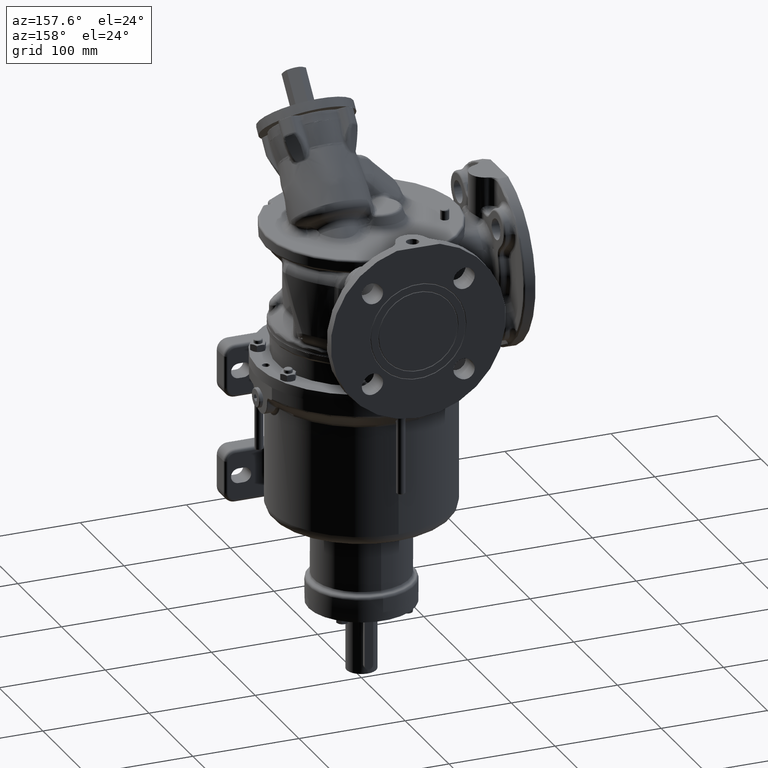
[diagram: clean part render]
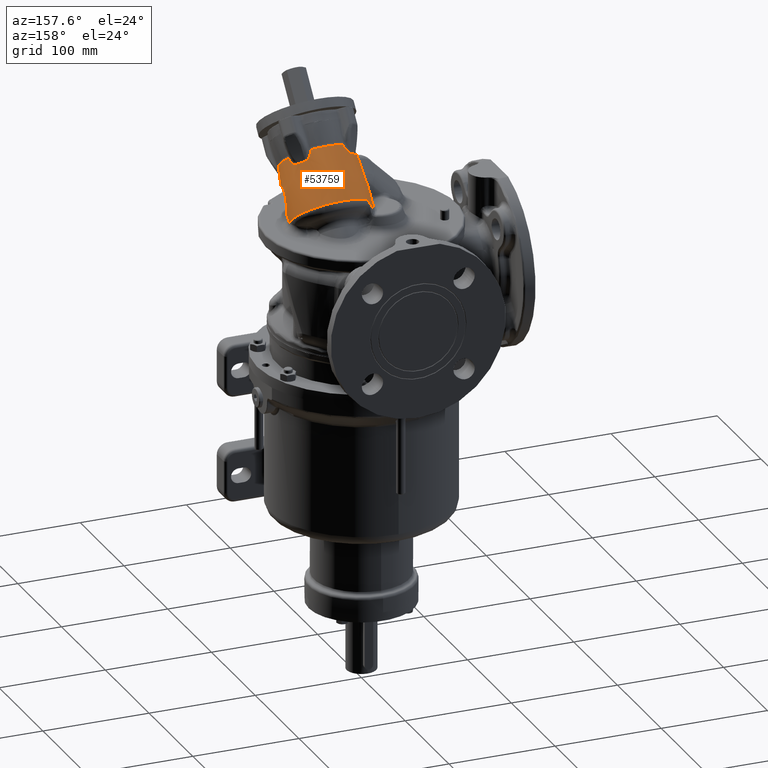
[diagram: same view with one face highlighted and labeled with its STEP entity id]
A machine part, auxiliary view. The second image highlights one B-rep face of the part: STEP entity #53759.
In plain terms, the highlighted face is a freeform B-spline surface patch.
Its self-contained STEP definition (entity closure, byte-faithful):
#5543=CARTESIAN_POINT('',(6.436123044226E1,-1.279247660228E1,1.414942116374E2));
#5956=CARTESIAN_POINT('',(-1.430507384947E0,2.500341761834E1,1.515457124241E2));
#5957=CARTESIAN_POINT('',(-1.616240001855E0,2.461004323683E1,1.515594611873E2));
#5958=CARTESIAN_POINT('',(-1.980322993446E0,2.381378270042E1,1.515872635688E2));
#5959=CARTESIAN_POINT('',(-2.503507672943E0,2.259099522810E1,1.516298904406E2));
#5960=CARTESIAN_POINT('',(-3.002496859808E0,2.134102539255E1,1.516733973736E2));
#5961=CARTESIAN_POINT('',(-3.476212365173E0,2.006488685634E1,1.517177479352E2));
#5962=CARTESIAN_POINT('',(-3.923589479497E0,1.876371074181E1,1.517629007615E2));
#5963=CARTESIAN_POINT('',(-4.343631942686E0,1.743861034594E1,1.518088262411E2));
#5964=CARTESIAN_POINT('',(-4.735365979979E0,1.609081411482E1,1.518554849647E2));
#5965=CARTESIAN_POINT('',(-5.097812900257E0,1.472181530795E1,1.519028277712E2));
#5966=CARTESIAN_POINT('',(-5.430074142924E0,1.333312602029E1,1.519508008598E2));
#5967=CARTESIAN_POINT('',(-5.731329119799E0,1.192622817261E1,1.519993691754E2));
#5968=CARTESIAN_POINT('',(-6.000785709954E0,1.050283847287E1,1.520484841777E2));
#5969=CARTESIAN_POINT('',(-6.237734812751E0,9.064713230071E0,1.520980919755E2));
#5970=CARTESIAN_POINT('',(-6.441550147986E0,7.613627769682E0,1.521481361454E2));
#5971=CARTESIAN_POINT('',(-6.611674167327E0,6.151482383412E0,1.521985540940E2));
#5972=CARTESIAN_POINT('',(-6.747653226122E0,4.680106345831E0,1.522492981782E2));
#5973=CARTESIAN_POINT('',(-6.815246681029E0,3.694634694561E0,1.522832859291E2));
#5974=CARTESIAN_POINT('',(-6.843261921554E0,3.200819154326E0,1.523003247988E2));
#5976=CARTESIAN_POINT('',(5.676362037364E0,2.571024753623E1,1.641156532342E2));
#5977=CARTESIAN_POINT('',(5.439296697320E0,2.565800592011E1,1.638527452815E2));
#5978=CARTESIAN_POINT('',(4.989831998513E0,2.555541404138E1,1.633414482981E2));
#5979=CARTESIAN_POINT('',(4.392810773324E0,2.541565525252E1,1.626254855609E2));
#5980=CARTESIAN_POINT('',(3.854098903746E0,2.528995811792E1,1.619438144553E2));
#5981=CARTESIAN_POINT('',(3.362244632372E0,2.517807021868E1,1.612867502865E2));
#5982=CARTESIAN_POINT('',(2.905661831854E0,2.507871366060E1,1.606429343421E2));
#5983=CARTESIAN_POINT('',(2.476575733919E0,2.499121886526E1,1.600040558083E2));
#5984=CARTESIAN_POINT('',(2.071269506046E0,2.491546514998E1,1.593668067188E2));
#5985=CARTESIAN_POINT('',(1.686194763118E0,2.485147233922E1,1.587271961222E2));
#5986=CARTESIAN_POINT('',(1.319686838534E0,2.479935433223E1,1.580839897578E2));
#5987=CARTESIAN_POINT('',(9.698675451934E-1,2.475940147399E1,1.574349559670E2));
#5988=CARTESIAN_POINT('',(6.364896363342E-1,2.473203998569E1,1.567806625165E2));
#5989=CARTESIAN_POINT('',(3.195702102275E-1,2.471764608559E1,1.561223481672E2));
#5990=CARTESIAN_POINT('',(1.900944712638E-2,2.471659783852E1,1.554610520982E2));
#5991=CARTESIAN_POINT('',(-2.649187327425E-1,2.472922522410E1,
1.547987828033E2));
#5992=CARTESIAN_POINT('',(-5.320705356028E-1,2.475572932527E1,
1.541375682304E2));
#5993=CARTESIAN_POINT('',(-7.824310346300E-1,2.479617897517E1,
1.534794058711E2));
#5994=CARTESIAN_POINT('',(-1.015983426979E0,2.485063490379E1,1.528264018508E2));
#5995=CARTESIAN_POINT('',(-1.232879677057E0,2.491905292313E1,1.521804309566E2));
#5996=CARTESIAN_POINT('',(-1.366363213623E0,2.497378595283E1,1.517562637289E2));
#5997=CARTESIAN_POINT('',(-1.430507384947E0,2.500341761834E1,1.515457124241E2));
#5999=CARTESIAN_POINT('',(3.047620154147E1,4.162493042489E0,1.460349372192E2));
#6000=DIRECTION('',(0.E0,6.427876096865E-1,-7.660444431190E-1));
#6001=DIRECTION('',(-6.613291425453E-1,5.746067480140E-1,4.821523103305E-1));
#6002=AXIS2_PLACEMENT_3D('',#5999,#6000,#6001);
#6004=CARTESIAN_POINT('',(6.436123044226E1,-1.279247660228E1,1.414942116374E2));
#6005=CARTESIAN_POINT('',(6.451480598735E1,-1.236614298789E1,1.414760272187E2));
#6006=CARTESIAN_POINT('',(6.481340590201E1,-1.150503612427E1,1.414390949227E2));
#6007=CARTESIAN_POINT('',(6.523492843169E1,-1.018827656029E1,1.413819708743E2));
#6008=CARTESIAN_POINT('',(6.562898127518E1,-8.847839888662E0,1.413231328444E2));
#6009=CARTESIAN_POINT('',(6.599463891300E1,-7.484870203931E0,1.412625844288E2));
#6010=CARTESIAN_POINT('',(6.633096462915E1,-6.100759835433E0,1.412003355614E2));
#6011=CARTESIAN_POINT('',(6.663708209790E1,-4.696985092298E0,1.411364067190E2));
#6012=CARTESIAN_POINT('',(6.691219326897E1,-3.274957659285E0,1.410708093700E2));
#6013=CARTESIAN_POINT('',(6.707439018787E1,-2.316068537081E0,1.410259959841E2));
#6014=CARTESIAN_POINT('',(6.715010608966E1,-1.833962975726E0,1.410033131860E2));
#6016=CARTESIAN_POINT('',(6.576805150562E1,-1.080088342895E1,1.445506128707E2));
#6017=CARTESIAN_POINT('',(6.568361934488E1,-1.093295676020E1,1.443262472849E2));
#6018=CARTESIAN_POINT('',(6.551035082589E1,-1.119830376809E1,1.438857184175E2));
#6019=CARTESIAN_POINT('',(6.523789690904E1,-1.159758573368E1,1.432468897192E2));
#6020=CARTESIAN_POINT('',(6.495450972079E1,-1.199796342676E1,1.426339960134E2));
#6021=CARTESIAN_POINT('',(6.466193535120E1,-1.239666512503E1,1.420471354656E2));
#6022=CARTESIAN_POINT('',(6.446214833695E1,-1.266102327348E1,1.416755958186E2));
#6023=CARTESIAN_POINT('',(6.436123044226E1,-1.279247660228E1,1.414942116374E2));
#6025=CARTESIAN_POINT('',(4.689860901694E1,-3.584555753178E1,1.423760501433E2));
#6026=CARTESIAN_POINT('',(4.690087379525E1,-3.592349553134E1,1.424835469094E2));
#6027=CARTESIAN_POINT('',(4.690973114052E1,-3.607749535107E1,1.426998628040E2));
#6028=CARTESIAN_POINT('',(4.693595318947E1,-3.630284149840E1,1.430282929692E2));
#6029=CARTESIAN_POINT('',(4.697514327703E1,-3.652251702284E1,1.433607697314E2));
#6030=CARTESIAN_POINT('',(4.702730434970E1,-3.673647969396E1,1.436973613908E2));
#6031=CARTESIAN_POINT('',(4.709248443744E1,-3.694464870442E1,1.440381563043E2));
#6032=CARTESIAN_POINT('',(4.717059622445E1,-3.714700056333E1,1.443832403708E2));
#6033=CARTESIAN_POINT('',(4.726207685013E1,-3.734320271655E1,1.447327655514E2));
#6034=CARTESIAN_POINT('',(4.736724055580E1,-3.753296546823E1,1.450868850109E2));
#6035=CARTESIAN_POINT('',(4.748610921028E1,-3.771611829333E1,1.454457066150E2));
#6036=CARTESIAN_POINT('',(4.761867288421E1,-3.789249721134E1,1.458093612682E2));
#6037=CARTESIAN_POINT('',(4.776499685472E1,-3.806193162974E1,1.461780867602E2));
#6038=CARTESIAN_POINT('',(4.792471982865E1,-3.822457076567E1,1.465522165725E2));
#6039=CARTESIAN_POINT('',(4.809910234613E1,-3.837922721922E1,1.469317793589E2));
#6040=CARTESIAN_POINT('',(4.828829567956E1,-3.852512173424E1,1.473164323811E2));
#6041=CARTESIAN_POINT('',(4.849194989537E1,-3.866183461703E1,1.477059093072E2));
#6042=CARTESIAN_POINT('',(4.870969202039E1,-3.878904927587E1,1.481000993051E2));
#6043=CARTESIAN_POINT('',(4.894156955617E1,-3.890655794392E1,1.484995168561E2));
#6044=CARTESIAN_POINT('',(4.918693820799E1,-3.901474483850E1,1.489048606155E2));
#6045=CARTESIAN_POINT('',(4.944817218210E1,-3.911107937948E1,1.493159051943E2));
#6046=CARTESIAN_POINT('',(4.972561286433E1,-3.919494136519E1,1.497332357027E2));
#6047=CARTESIAN_POINT('',(5.001940126264E1,-3.926601755614E1,1.501577811192E2));
#6048=CARTESIAN_POINT('',(5.032896588098E1,-3.932384480222E1,1.505895892758E2));
#6049=CARTESIAN_POINT('',(5.065204082673E1,-3.936769248904E1,1.510264104361E2));
#6050=CARTESIAN_POINT('',(5.098539495230E1,-3.939808862065E1,1.514664358245E2));
#6051=CARTESIAN_POINT('',(5.133157247083E1,-3.941066076119E1,1.519075631726E2));
#6052=CARTESIAN_POINT('',(5.169179036696E1,-3.940551507695E1,1.523529556979E2));
#6053=CARTESIAN_POINT('',(5.206789398091E1,-3.938210483821E1,1.528059956796E2));
#6054=CARTESIAN_POINT('',(5.245818276101E1,-3.934000819082E1,1.532659751887E2));
#6055=CARTESIAN_POINT('',(5.285661260775E1,-3.927984837153E1,1.537275547152E2));
#6056=CARTESIAN_POINT('',(5.325691128047E1,-3.920323505906E1,1.541854848173E2));
#6057=CARTESIAN_POINT('',(5.366167818311E1,-3.910589156279E1,1.546379681095E2));
#6058=CARTESIAN_POINT('',(5.407352734284E1,-3.898790020953E1,1.550903516329E2));
#6059=CARTESIAN_POINT('',(5.449590848188E1,-3.884747374123E1,1.555472627434E2));
#6060=CARTESIAN_POINT('',(5.492691209819E1,-3.868448175306E1,1.560079260877E2));
#6061=CARTESIAN_POINT('',(5.536213794724E1,-3.850027048180E1,1.564692292985E2));
#6062=CARTESIAN_POINT('',(5.579802120513E1,-3.829620908321E1,1.569287244139E2));
#6063=CARTESIAN_POINT('',(5.623169658615E1,-3.807226650317E1,1.573823686610E2));
#6064=CARTESIAN_POINT('',(5.666002328425E1,-3.782991125399E1,1.578272534619E2));
#6065=CARTESIAN_POINT('',(5.708034290356E1,-3.757080107448E1,1.582607635138E2));
#6066=CARTESIAN_POINT('',(5.749824531681E1,-3.729170174550E1,1.586892567484E2));
#6067=CARTESIAN_POINT('',(5.791993501272E1,-3.698690093577E1,1.591184895647E2));
#6068=CARTESIAN_POINT('',(5.834766973513E1,-3.665523033153E1,1.595550062862E2));
#6069=CARTESIAN_POINT('',(5.877100047521E1,-3.630320695249E1,1.599884376060E2));
#6070=CARTESIAN_POINT('',(5.918090710377E1,-3.593768116342E1,1.604084426984E2));
#6071=CARTESIAN_POINT('',(5.957336075576E1,-3.556319997670E1,1.608103407293E2));
#6072=CARTESIAN_POINT('',(5.995018661612E1,-3.517915482014E1,1.611954141594E2));
#6073=CARTESIAN_POINT('',(6.031179170865E1,-3.478617312255E1,1.615636244631E2));
#6074=CARTESIAN_POINT('',(6.066037404234E1,-3.438458390373E1,1.619198014346E2));
#6075=CARTESIAN_POINT('',(6.099889810556E1,-3.397140743076E1,1.622666332677E2));
#6076=CARTESIAN_POINT('',(6.133008150611E1,-3.354344480495E1,1.626070835802E2));
#6077=CARTESIAN_POINT('',(6.165451327119E1,-3.309954722897E1,1.629417873876E2));
#6078=CARTESIAN_POINT('',(6.197216495890E1,-3.263954677507E1,1.632712551372E2));
#6079=CARTESIAN_POINT('',(6.228309616269E1,-3.216212643768E1,1.635943918286E2));
#6080=CARTESIAN_POINT('',(6.258836180692E1,-3.166335683882E1,1.639095830472E2));
#6081=CARTESIAN_POINT('',(6.288873784690E1,-3.114143186190E1,1.642187937993E2));
#6082=CARTESIAN_POINT('',(6.318470125092E1,-3.059388948281E1,1.645228534560E2));
#6083=CARTESIAN_POINT('',(6.347060413610E1,-3.003019882892E1,1.648163906436E2));
#6084=CARTESIAN_POINT('',(6.374116484242E1,-2.946248963647E1,1.650956598855E2));
#6085=CARTESIAN_POINT('',(6.399342399101E1,-2.889839607776E1,1.653548511337E2));
#6086=CARTESIAN_POINT('',(6.423067651579E1,-2.833278525561E1,1.655956060278E2));
#6087=CARTESIAN_POINT('',(6.445510103917E1,-2.776233280221E1,1.658197547152E2));
#6088=CARTESIAN_POINT('',(6.466836054453E1,-2.718397873274E1,1.660283201452E2));
#6089=CARTESIAN_POINT('',(6.487101811381E1,-2.659714598346E1,1.662214229053E2));
#6090=CARTESIAN_POINT('',(6.506401164938E1,-2.599972026770E1,1.663992511939E2));
#6091=CARTESIAN_POINT('',(6.524648841719E1,-2.539608083679E1,1.665630731850E2));
#6092=CARTESIAN_POINT('',(6.541611181702E1,-2.479516986093E1,1.667086511512E2));
#6093=CARTESIAN_POINT('',(6.557126039630E1,-2.420653744819E1,1.668333518669E2));
#6094=CARTESIAN_POINT('',(6.571436295688E1,-2.362542696403E1,1.669385229667E2));
#6095=CARTESIAN_POINT('',(6.584789583466E1,-2.304441667408E1,1.670238107080E2));
#6096=CARTESIAN_POINT('',(6.597353327963E1,-2.245936048969E1,1.670934695065E2));
#6097=CARTESIAN_POINT('',(6.609000948768E1,-2.187825942162E1,1.671467058914E2));
#6098=CARTESIAN_POINT('',(6.619646735027E1,-2.130902053115E1,1.671814809098E2));
#6099=CARTESIAN_POINT('',(6.629379996605E1,-2.075170389892E1,1.671978825684E2));
#6100=CARTESIAN_POINT('',(6.638321872282E1,-2.020366274691E1,1.671947000533E2));
#6101=CARTESIAN_POINT('',(6.646565822532E1,-1.966404527548E1,1.671759263008E2));
#6102=CARTESIAN_POINT('',(6.654131903695E1,-1.913546232932E1,1.671415267019E2));
#6103=CARTESIAN_POINT('',(6.661054569396E1,-1.862003154010E1,1.670912001103E2));
#6104=CARTESIAN_POINT('',(6.667396934708E1,-1.811780913956E1,1.670247844379E2));
#6105=CARTESIAN_POINT('',(6.673218592151E1,-1.762886530138E1,1.669427539609E2));
#6106=CARTESIAN_POINT('',(6.678582790947E1,-1.715237173417E1,1.668478088613E2));
#6107=CARTESIAN_POINT('',(6.683542106634E1,-1.668772744559E1,1.667389880154E2));
#6108=CARTESIAN_POINT('',(6.688135781953E1,-1.623530832936E1,1.666165033381E2));
#6109=CARTESIAN_POINT('',(6.692393536967E1,-1.579632375583E1,1.664805438837E2));
#6110=CARTESIAN_POINT('',(6.696355838303E1,-1.537024127008E1,1.663330735275E2));
#6111=CARTESIAN_POINT('',(6.700066718389E1,-1.495587343574E1,1.661734970561E2));
#6112=CARTESIAN_POINT('',(6.703556986619E1,-1.455306072250E1,1.660018106692E2));
#6113=CARTESIAN_POINT('',(6.706847251363E1,-1.416261348880E1,1.658183516714E2));
#6114=CARTESIAN_POINT('',(6.709961443866E1,-1.378423812239E1,1.656243240694E2));
#6115=CARTESIAN_POINT('',(6.712923177875E1,-1.341771922002E1,1.654195887255E2));
#6116=CARTESIAN_POINT('',(6.715753120848E1,-1.306285569986E1,1.652041916234E2));
#6117=CARTESIAN_POINT('',(6.718470135920E1,-1.271939045655E1,1.649780845874E2));
#6118=CARTESIAN_POINT('',(6.721089266212E1,-1.238694528044E1,1.647417974599E2));
#6119=CARTESIAN_POINT('',(6.723621449067E1,-1.206575279490E1,1.644954299664E2));
#6120=CARTESIAN_POINT('',(6.726076737712E1,-1.175584632209E1,1.642391421278E2));
#6121=CARTESIAN_POINT('',(6.728463816787E1,-1.145719968443E1,1.639730219277E2));
#6122=CARTESIAN_POINT('',(6.730789860599E1,-1.116958387434E1,1.636973021118E2));
#6123=CARTESIAN_POINT('',(6.733060743532E1,-1.089290757725E1,1.634118783701E2));
#6124=CARTESIAN_POINT('',(6.735280414408E1,-1.062709210970E1,1.631166678470E2));
#6125=CARTESIAN_POINT('',(6.737451052321E1,-1.037204750658E1,1.628115943178E2));
#6126=CARTESIAN_POINT('',(6.739573020855E1,-1.012770295659E1,1.624965673243E2));
#6127=CARTESIAN_POINT('',(6.741643447672E1,-9.894255176138E0,1.621716002566E2));
#6128=CARTESIAN_POINT('',(6.743657694768E1,-9.671862668076E0,1.618367686851E2));
#6129=CARTESIAN_POINT('',(6.745610830881E1,-9.460485669783E0,1.614919456614E2));
#6130=CARTESIAN_POINT('',(6.747495974669E1,-9.260151330730E0,1.611369374235E2));
#6131=CARTESIAN_POINT('',(6.749303383288E1,-9.071156354460E0,1.607714228473E2));
#6132=CARTESIAN_POINT('',(6.751021576183E1,-8.893587609601E0,1.603952406409E2));
#6133=CARTESIAN_POINT('',(6.752636919119E1,-8.727521653103E0,1.600082583119E2));
#6134=CARTESIAN_POINT('',(6.754132959091E1,-8.573194520577E0,1.596102675777E2));
#6135=CARTESIAN_POINT('',(6.755487342131E1,-8.431416452908E0,1.592012467689E2));
#6136=CARTESIAN_POINT('',(6.756677501992E1,-8.302419504140E0,1.587816021988E2));
#6137=CARTESIAN_POINT('',(6.757681515936E1,-8.186119904497E0,1.583508129292E2));
#6138=CARTESIAN_POINT('',(6.758472819819E1,-8.082699386804E0,1.579079272985E2));
#6139=CARTESIAN_POINT('',(6.759012351479E1,-7.993580528340E0,1.574533854293E2));
#6140=CARTESIAN_POINT('',(6.759266694622E1,-7.918918193761E0,1.569884085610E2));
#6141=CARTESIAN_POINT('',(6.759200752632E1,-7.858865277792E0,1.565132728835E2));
#6142=CARTESIAN_POINT('',(6.758780558988E1,-7.813064420199E0,1.560277488965E2));
#6143=CARTESIAN_POINT('',(6.757946654517E1,-7.783849008092E0,1.555318128966E2));
#6144=CARTESIAN_POINT('',(6.756655543977E1,-7.771087635298E0,1.550260232757E2));
#6145=CARTESIAN_POINT('',(6.754860859486E1,-7.774791035142E0,1.545107938157E2));
#6146=CARTESIAN_POINT('',(6.752515552944E1,-7.794548294926E0,1.539858857856E2));
#6147=CARTESIAN_POINT('',(6.749560657313E1,-7.830782364503E0,1.534509927967E2));
#6148=CARTESIAN_POINT('',(6.745906996302E1,-7.886390125698E0,1.529067910120E2));
#6149=CARTESIAN_POINT('',(6.741499930886E1,-7.960570038180E0,1.523536564825E2));
#6150=CARTESIAN_POINT('',(6.736283655717E1,-8.053065386946E0,1.517928698703E2));
#6151=CARTESIAN_POINT('',(6.730257537350E1,-8.162233595719E0,1.512299055079E2));
#6152=CARTESIAN_POINT('',(6.723465092608E1,-8.285678671215E0,1.506709112287E2));
#6153=CARTESIAN_POINT('',(6.715795967383E1,-8.427959034963E0,1.501153305572E2));
#6154=CARTESIAN_POINT('',(6.707140146320E1,-8.588854115964E0,1.495572626791E2));
#6155=CARTESIAN_POINT('',(6.697333042206E1,-8.769951459729E0,1.489911613870E2));
#6156=CARTESIAN_POINT('',(6.686303125719E1,-8.970753808468E0,1.484181643187E2));
#6157=CARTESIAN_POINT('',(6.674049250221E1,-9.189043099415E0,1.478415598090E2));
#6158=CARTESIAN_POINT('',(6.660547998391E1,-9.424413242679E0,1.472645184447E2));
#6159=CARTESIAN_POINT('',(6.645819001745E1,-9.677007291109E0,1.466929850467E2));
#6160=CARTESIAN_POINT('',(6.629953680423E1,-9.943893461544E0,1.461313875892E2));
#6161=CARTESIAN_POINT('',(6.613072279464E1,-1.022230434244E1,1.455841179384E2));
#6162=CARTESIAN_POINT('',(6.595311807838E1,-1.050921843627E1,1.450545022696E2));
#6163=CARTESIAN_POINT('',(6.583044945471E1,-1.070324913689E1,1.447163876688E2));
#6164=CARTESIAN_POINT('',(6.576805150562E1,-1.080088342895E1,1.445506128707E2));
#6166=CARTESIAN_POINT('',(2.746632514774E1,-4.055071516148E1,1.424563967735E2));
#6167=CARTESIAN_POINT('',(2.773817411909E1,-4.058045504468E1,1.424591131126E2));
#6168=CARTESIAN_POINT('',(2.828206357471E1,-4.063221462245E1,1.424643237948E2));
#6169=CARTESIAN_POINT('',(2.909822148703E1,-4.068652514555E1,1.424711119994E2));
#6170=CARTESIAN_POINT('',(2.991446163248E1,-4.071764203063E1,1.424770385706E2));
#6171=CARTESIAN_POINT('',(3.073060108639E1,-4.072556599530E1,1.424820491629E2));
#6172=CARTESIAN_POINT('',(3.154650218448E1,-4.071031500356E1,1.424861440100E2));
#6173=CARTESIAN_POINT('',(3.236205536044E1,-4.067188520344E1,1.424893151940E2));
#6174=CARTESIAN_POINT('',(3.317723409303E1,-4.061024441697E1,1.424915546364E2));
#6175=CARTESIAN_POINT('',(3.399202029209E1,-4.052532890278E1,1.424928535118E2));
#6176=CARTESIAN_POINT('',(3.480636299791E1,-4.041704990842E1,1.424932042443E2));
#6177=CARTESIAN_POINT('',(3.562020818290E1,-4.028528812662E1,1.424925944314E2));
#6178=CARTESIAN_POINT('',(3.643350009718E1,-4.012990047105E1,1.424910175692E2));
#6179=CARTESIAN_POINT('',(3.724616555796E1,-3.995071168975E1,1.424884576634E2));
#6180=CARTESIAN_POINT('',(3.805812078905E1,-3.974752810528E1,1.424849086543E2));
#6181=CARTESIAN_POINT('',(3.886926460337E1,-3.952012287502E1,1.424803516791E2));
#6182=CARTESIAN_POINT('',(3.967948261228E1,-3.926825371871E1,1.424747799491E2));
#6183=CARTESIAN_POINT('',(4.048863412148E1,-3.899164871376E1,1.424681730779E2));
#6184=CARTESIAN_POINT('',(4.129656635759E1,-3.869002113311E1,1.424605220979E2));
#6185=CARTESIAN_POINT('',(4.210310183512E1,-3.836305686417E1,1.424518062825E2));
#6186=CARTESIAN_POINT('',(4.290803206440E1,-3.801043355288E1,1.424420134994E2));
#6187=CARTESIAN_POINT('',(4.371111873803E1,-3.763181016293E1,1.424311237624E2));
#6188=CARTESIAN_POINT('',(4.451210870282E1,-3.722682994331E1,1.424191210622E2));
#6189=CARTESIAN_POINT('',(4.531070514883E1,-3.679512885535E1,1.424059864318E2));
#6190=CARTESIAN_POINT('',(4.610652056295E1,-3.633637265961E1,1.423917014695E2));
#6191=CARTESIAN_POINT('',(4.663500221555E1,-3.601223182237E1,1.423813987082E2));
#6192=CARTESIAN_POINT('',(4.689860901694E1,-3.584555753178E1,1.423760501433E2));
#6194=CARTESIAN_POINT('',(2.746632514774E1,-4.055071516148E1,1.424563967735E2));
#6195=CARTESIAN_POINT('',(2.719846039142E1,-4.071563254217E1,1.427175670964E2));
#6196=CARTESIAN_POINT('',(2.665996077978E1,-4.104843517914E1,1.432555693316E2));
#6197=CARTESIAN_POINT('',(2.584538928821E1,-4.155565402867E1,1.441099068022E2));
#6198=CARTESIAN_POINT('',(2.502445885361E1,-4.207091019225E1,1.450132901912E2));
#6199=CARTESIAN_POINT('',(2.419803751762E1,-4.259395353272E1,1.459670410788E2));
#6200=CARTESIAN_POINT('',(2.336690439262E1,-4.312455614475E1,1.469725739443E2));
#6201=CARTESIAN_POINT('',(2.253214767618E1,-4.366228007783E1,1.480309662020E2));
#6202=CARTESIAN_POINT('',(2.169532574938E1,-4.420622623743E1,1.491424535612E2));
#6203=CARTESIAN_POINT('',(2.085807955041E1,-4.475575655220E1,1.503075221444E2));
#6204=CARTESIAN_POINT('',(2.002202662837E1,-4.531017596250E1,1.515265110161E2));
#6205=CARTESIAN_POINT('',(1.918876593443E1,-4.586876707253E1,1.527996650302E2));
#6206=CARTESIAN_POINT('',(1.835987622635E1,-4.643076420497E1,1.541271078840E2));
#6207=CARTESIAN_POINT('',(1.753686241770E1,-4.699536634526E1,1.555088989788E2));
#6208=CARTESIAN_POINT('',(1.672140004462E1,-4.756189237172E1,1.569451492588E2));
#6209=CARTESIAN_POINT('',(1.618398679665E1,-4.794042429270E1,1.579388777119E2));
#6210=CARTESIAN_POINT('',(1.591706561585E1,-4.812976099898E1,1.584448325351E2));
#6212=CARTESIAN_POINT('',(1.630373908460E1,-5.294087279912E1,1.656091924176E2));
#6213=CARTESIAN_POINT('',(1.626612080578E1,-5.280837273060E1,1.654295878471E2));
#6214=CARTESIAN_POINT('',(1.618638797412E1,-5.254630797090E1,1.650797593276E2));
#6215=CARTESIAN_POINT('',(1.605395745943E1,-5.216168251826E1,1.645822371879E2));
#6216=CARTESIAN_POINT('',(1.591019908877E1,-5.178732611488E1,1.641134309324E2));
#6217=CARTESIAN_POINT('',(1.575691451697E1,-5.142441435039E1,1.636737089300E2));
#6218=CARTESIAN_POINT('',(1.559538897217E1,-5.107403591537E1,1.632636912556E2));
#6219=CARTESIAN_POINT('',(1.542725021737E1,-5.073723752464E1,1.628836176687E2));
#6220=CARTESIAN_POINT('',(1.525461583759E1,-5.041516125348E1,1.625333951922E2));
#6221=CARTESIAN_POINT('',(1.507970560852E1,-5.010875526831E1,1.622124595440E2));
#6222=CARTESIAN_POINT('',(1.490284888232E1,-4.981786128489E1,1.619201826754E2));
#6223=CARTESIAN_POINT('',(1.472504692017E1,-4.954241486606E1,1.616554695383E2));
#6224=CARTESIAN_POINT('',(1.454759506235E1,-4.928234062509E1,1.614169174698E2));
#6225=CARTESIAN_POINT('',(1.443045443222E1,-4.911899814858E1,1.612740225753E2));
#6226=CARTESIAN_POINT('',(1.437246506924E1,-4.903988456050E1,1.612064087144E2));
#6228=CARTESIAN_POINT('',(3.047620154147E1,-2.906968431497E1,1.856395039747E2));
#6229=DIRECTION('',(0.E0,6.427876096865E-1,-7.660444431190E-1));
#6230=DIRECTION('',(4.129549526644E-1,-6.976760887619E-1,-5.854197487614E-1));
#6231=AXIS2_PLACEMENT_3D('',#6228,#6229,#6230);
#6233=CARTESIAN_POINT('',(4.980631049483E1,-4.609570739093E1,1.601008169009E2));
#6234=CARTESIAN_POINT('',(4.977011057639E1,-4.611389972321E1,1.600855440993E2));
#6235=CARTESIAN_POINT('',(4.969713519106E1,-4.615170643512E1,1.600568570264E2));
#6236=CARTESIAN_POINT('',(4.958601727539E1,-4.621248851789E1,1.600192357730E2));
#6237=CARTESIAN_POINT('',(4.947306224630E1,-4.627741341774E1,1.599869460578E2));
#6238=CARTESIAN_POINT('',(4.935819177871E1,-4.634663095683E1,1.599601673812E2));
#6239=CARTESIAN_POINT('',(4.924143831235E1,-4.642038215083E1,1.599393480484E2));
#6240=CARTESIAN_POINT('',(4.912226978705E1,-4.649907620472E1,1.599245519924E2));
#6241=CARTESIAN_POINT('',(4.900020736211E1,-4.658315715844E1,1.599159808323E2));
#6242=CARTESIAN_POINT('',(4.887488007392E1,-4.667304575827E1,1.599139412677E2));
#6243=CARTESIAN_POINT('',(4.874607857249E1,-4.676911544125E1,1.599188629296E2));
#6244=CARTESIAN_POINT('',(4.861367030181E1,-4.687187346588E1,1.599314767933E2));
#6245=CARTESIAN_POINT('',(4.847756481221E1,-4.698173365818E1,1.599524229059E2));
#6246=CARTESIAN_POINT('',(4.833769671240E1,-4.709896056005E1,1.599821446338E2));
#6247=CARTESIAN_POINT('',(4.819410138369E1,-4.722379303356E1,1.600211586461E2));
#6248=CARTESIAN_POINT('',(4.804673648794E1,-4.735693535397E1,1.600706199360E2));
#6249=CARTESIAN_POINT('',(4.789555450018E1,-4.749890823266E1,1.601313999710E2));
#6250=CARTESIAN_POINT('',(4.774036533906E1,-4.765005578771E1,1.602039585709E2));
#6251=CARTESIAN_POINT('',(4.758145858472E1,-4.781089158256E1,1.602895207840E2));
#6252=CARTESIAN_POINT('',(4.741914070090E1,-4.798190449443E1,1.603892802055E2));
#6253=CARTESIAN_POINT('',(4.725343451307E1,-4.816340225917E1,1.605038616830E2));
#6254=CARTESIAN_POINT('',(4.708482474424E1,-4.835575820812E1,1.606344530640E2));
#6255=CARTESIAN_POINT('',(4.691386236491E1,-4.855933740391E1,1.607822754171E2));
#6256=CARTESIAN_POINT('',(4.674078752129E1,-4.877438870373E1,1.609480562301E2));
#6257=CARTESIAN_POINT('',(4.656649589686E1,-4.900113270454E1,1.611330983490E2));
#6258=CARTESIAN_POINT('',(4.639150604123E1,-4.923972821873E1,1.613382221242E2));
#6259=CARTESIAN_POINT('',(4.621673245408E1,-4.949022763692E1,1.615644374735E2));
#6260=CARTESIAN_POINT('',(4.604300211553E1,-4.975262206659E1,1.618125477599E2));
#6261=CARTESIAN_POINT('',(4.587136260677E1,-5.002677535165E1,1.620833340577E2));
#6262=CARTESIAN_POINT('',(4.570281634064E1,-5.031247524219E1,1.623773863015E2));
#6263=CARTESIAN_POINT('',(4.553858430339E1,-5.060934924518E1,1.626952109197E2));
#6264=CARTESIAN_POINT('',(4.537980597900E1,-5.091693119325E1,1.630370624355E2));
#6265=CARTESIAN_POINT('',(4.522763618488E1,-5.123491462584E1,1.634034348127E2));
#6266=CARTESIAN_POINT('',(4.508329164614E1,-5.156273938571E1,1.637944596810E2));
#6267=CARTESIAN_POINT('',(4.494823627376E1,-5.189918928615E1,1.642094251841E2));
#6268=CARTESIAN_POINT('',(4.482370475840E1,-5.224340326592E1,1.646479645090E2));
#6269=CARTESIAN_POINT('',(4.471080189874E1,-5.259477360012E1,1.651099836083E2));
#6270=CARTESIAN_POINT('',(4.464400946700E1,-5.283312421477E1,1.654332070097E2));
#6271=CARTESIAN_POINT('',(4.461292323922E1,-5.295331618696E1,1.655987485095E2));
#6273=CARTESIAN_POINT('',(3.047620154147E1,-2.352907984277E1,1.790364686898E2));
#6274=DIRECTION('',(0.E0,6.427876096865E-1,-7.660444431190E-1));
#6275=DIRECTION('',(8.360753319587E-1,-4.202632076037E-1,-3.526427024977E-1));
#6276=AXIS2_PLACEMENT_3D('',#6273,#6274,#6275);
#6278=CARTESIAN_POINT('',(6.165404793576E1,-3.989904265976E1,1.765525946332E2));
#6279=CARTESIAN_POINT('',(6.166840872039E1,-3.979149183189E1,1.763759696385E2));
#6280=CARTESIAN_POINT('',(6.169365698525E1,-3.958475815325E1,1.760255748220E2));
#6281=CARTESIAN_POINT('',(6.172142630047E1,-3.929864525040E1,1.755088856090E2));
#6282=CARTESIAN_POINT('',(6.173960859047E1,-3.903616172393E1,1.750025122973E2));
#6283=CARTESIAN_POINT('',(6.174860527525E1,-3.879669093078E1,1.745074461800E2));
#6284=CARTESIAN_POINT('',(6.174882750160E1,-3.857964200686E1,1.740246037750E2));
#6285=CARTESIAN_POINT('',(6.174078812187E1,-3.838426909126E1,1.735550999749E2));
#6286=CARTESIAN_POINT('',(6.172488205241E1,-3.821028886238E1,1.731004254883E2));
#6287=CARTESIAN_POINT('',(6.170178677710E1,-3.805685631669E1,1.726621239057E2));
#6288=CARTESIAN_POINT('',(6.167197152024E1,-3.792316150443E1,1.722407334479E2));
#6289=CARTESIAN_POINT('',(6.163603165846E1,-3.780808454116E1,1.718366659782E2));
#6290=CARTESIAN_POINT('',(6.159458199491E1,-3.771048340661E1,1.714502917457E2));
#6291=CARTESIAN_POINT('',(6.154805950258E1,-3.762955071806E1,1.710818210401E2));
#6292=CARTESIAN_POINT('',(6.149720909889E1,-3.756385705872E1,1.707314553912E2));
#6293=CARTESIAN_POINT('',(6.144243093955E1,-3.751259892913E1,1.703991163739E2));
#6294=CARTESIAN_POINT('',(6.138427727593E1,-3.747463867207E1,1.700846524084E2));
#6295=CARTESIAN_POINT('',(6.132337750788E1,-3.744864642002E1,1.697877753468E2));
#6296=CARTESIAN_POINT('',(6.125997629831E1,-3.743401641076E1,1.695080392422E2));
#6297=CARTESIAN_POINT('',(6.119460917140E1,-3.742948350251E1,1.692448451488E2));
#6298=CARTESIAN_POINT('',(6.112771872174E1,-3.743402313188E1,1.689976570964E2));
#6299=CARTESIAN_POINT('',(6.105949578310E1,-3.744715738276E1,1.687660201591E2));
#6300=CARTESIAN_POINT('',(6.099038125251E1,-3.746778455254E1,1.685492195317E2));
#6301=CARTESIAN_POINT('',(6.092071937683E1,-3.749499454687E1,1.683465238328E2));
#6302=CARTESIAN_POINT('',(6.085055428120E1,-3.752850724159E1,1.681573067857E2));
#6303=CARTESIAN_POINT('',(6.078006034007E1,-3.756764634785E1,1.679806873709E2));
#6304=CARTESIAN_POINT('',(6.070946736391E1,-3.761157663371E1,1.678156906414E2));
#6305=CARTESIAN_POINT('',(6.063881936587E1,-3.766010502728E1,1.676618999768E2));
#6306=CARTESIAN_POINT('',(6.056816652573E1,-3.771289897830E1,1.675186772029E2));
#6307=CARTESIAN_POINT('',(6.049748891318E1,-3.776960144293E1,1.673851220772E2));
#6308=CARTESIAN_POINT('',(6.042695214048E1,-3.782973790185E1,1.672607634572E2));
#6309=CARTESIAN_POINT('',(6.035698644667E1,-3.789277250370E1,1.671458774381E2));
#6310=CARTESIAN_POINT('',(6.028752751976E1,-3.795853642336E1,1.670397628978E2));
#6311=CARTESIAN_POINT('',(6.021784948033E1,-3.802759297713E1,1.669409607458E2));
#6312=CARTESIAN_POINT('',(6.014755558313E1,-3.810023197078E1,1.668486627668E2));
#6313=CARTESIAN_POINT('',(6.007692122119E1,-3.817595715395E1,1.667627973545E2));
#6314=CARTESIAN_POINT('',(6.000600764768E1,-3.825465265195E1,1.666832819145E2));
#6315=CARTESIAN_POINT('',(5.995858742908E1,-3.830907600546E1,1.666345674742E2));
#6316=CARTESIAN_POINT('',(5.993483752072E1,-3.833680856428E1,1.666113085590E2));
#6318=CARTESIAN_POINT('',(5.789095002572E1,-6.573758979388E0,1.932636721726E2));
#6319=CARTESIAN_POINT('',(5.792753472179E1,-6.608474485352E0,1.932345486085E2));
#6320=CARTESIAN_POINT('',(5.800221890454E1,-6.681650154877E0,1.931764656449E2));
#6321=CARTESIAN_POINT('',(5.811879472396E1,-6.803732276033E0,1.930904595513E2));
#6322=CARTESIAN_POINT('',(5.823904413563E1,-6.938253786E0,1.930067877435E2));
#6323=CARTESIAN_POINT('',(5.836227660088E1,-7.085269109067E0,1.929263434761E2));
#6324=CARTESIAN_POINT('',(5.848775644005E1,-7.244547765387E0,1.928498787938E2));
#6325=CARTESIAN_POINT('',(5.861470025348E1,-7.415355128689E0,1.927778466666E2));
#6326=CARTESIAN_POINT('',(5.874291763725E1,-7.598291435836E0,1.927108455478E2));
#6327=CARTESIAN_POINT('',(5.887234044909E1,-7.794210690075E0,1.926494600572E2));
#6328=CARTESIAN_POINT('',(5.900294605304E1,-8.003924986330E0,1.925941398660E2));
#6329=CARTESIAN_POINT('',(5.913510710530E1,-8.228751925384E0,1.925450182653E2));
#6330=CARTESIAN_POINT('',(5.926900570966E1,-8.469785510969E0,1.925022998967E2));
#6331=CARTESIAN_POINT('',(5.940300889628E1,-8.725714428429E0,1.924674932617E2));
#6332=CARTESIAN_POINT('',(5.953554585857E1,-8.994490932876E0,1.924415696965E2));
#6333=CARTESIAN_POINT('',(5.966674585369E1,-9.277084948317E0,1.924249140450E2));
#6334=CARTESIAN_POINT('',(5.979731883921E1,-9.575764764019E0,1.924177739707E2));
#6335=CARTESIAN_POINT('',(5.992637314419E1,-9.890124075632E0,1.924212179261E2));
#6336=CARTESIAN_POINT('',(6.005253798563E1,-1.021813409853E1,1.924360712418E2));
#6337=CARTESIAN_POINT('',(6.017541599799E1,-1.055966887003E1,1.924629051814E2));
#6338=CARTESIAN_POINT('',(6.029524716233E1,-1.091619559501E1,1.925022662298E2));
#6339=CARTESIAN_POINT('',(6.041153529002E1,-1.128786067150E1,1.925551002892E2));
#6340=CARTESIAN_POINT('',(6.052354462076E1,-1.167403126219E1,1.926222971264E2));
#6341=CARTESIAN_POINT('',(6.063068479185E1,-1.207412826454E1,1.927045678207E2));
#6342=CARTESIAN_POINT('',(6.073245354207E1,-1.248736127788E1,1.928023448691E2));
#6343=CARTESIAN_POINT('',(6.082834276557E1,-1.291323370875E1,1.929163623287E2));
#6344=CARTESIAN_POINT('',(6.091789760483E1,-1.335146403359E1,1.930474575956E2));
#6345=CARTESIAN_POINT('',(6.100070564970E1,-1.380163947296E1,1.931963260738E2));
#6346=CARTESIAN_POINT('',(6.107642393590E1,-1.426326416567E1,1.933634934919E2));
#6347=CARTESIAN_POINT('',(6.114462301538E1,-1.473591898606E1,1.935497779227E2));
#6348=CARTESIAN_POINT('',(6.120489257965E1,-1.521921887931E1,1.937560240742E2));
#6349=CARTESIAN_POINT('',(6.125686555412E1,-1.571269397051E1,1.939829552978E2));
#6350=CARTESIAN_POINT('',(6.130022589708E1,-1.621582488520E1,1.942311771491E2));
#6351=CARTESIAN_POINT('',(6.133454263994E1,-1.672794370526E1,1.945014795409E2));
#6352=CARTESIAN_POINT('',(6.135941438145E1,-1.724832601273E1,1.947946308387E2));
#6353=CARTESIAN_POINT('',(6.136946225955E1,-1.760013589916E1,1.950055381979E2));
#6354=CARTESIAN_POINT('',(6.137280040796E1,-1.777718574822E1,1.951150332717E2));
#6356=CARTESIAN_POINT('',(3.047620154147E1,-2.352907984277E1,1.790364686898E2));
#6357=DIRECTION('',(0.E0,6.427876096865E-1,-7.660444431190E-1));
#6358=DIRECTION('',(6.281812816301E-1,5.960339120229E-1,5.001318357476E-1));
#6359=AXIS2_PLACEMENT_3D('',#6356,#6357,#6358);
#6361=CARTESIAN_POINT('',(4.521752216302E1,-5.401540508371E0,2.054994409424E2));
#6362=CARTESIAN_POINT('',(4.528272706658E1,-5.277102069400E0,2.053459528309E2));
#6363=CARTESIAN_POINT('',(4.541655161455E1,-5.035701258089E0,2.050427083990E2));
#6364=CARTESIAN_POINT('',(4.562661509374E1,-4.695669731704E0,2.045987789539E2));
#6365=CARTESIAN_POINT('',(4.584501990624E1,-4.377433828369E0,2.041661954445E2));
#6366=CARTESIAN_POINT('',(4.607073987491E1,-4.080555655978E0,2.037450343535E2));
#6367=CARTESIAN_POINT('',(4.630294452304E1,-3.804682630200E0,2.033353960226E2));
#6368=CARTESIAN_POINT('',(4.654082353655E1,-3.549409532837E0,2.029373181494E2));
#6369=CARTESIAN_POINT('',(4.678354777567E1,-3.314156562747E0,2.025507150678E2));
#6370=CARTESIAN_POINT('',(4.703021271146E1,-3.098607633375E0,2.021758178147E2));
#6371=CARTESIAN_POINT('',(4.727989493024E1,-2.902529553575E0,2.018129784989E2));
#6372=CARTESIAN_POINT('',(4.753160144782E1,-2.725478625740E0,2.014624438779E2));
#6373=CARTESIAN_POINT('',(4.778440279615E1,-2.566887681551E0,2.011243413506E2));
#6374=CARTESIAN_POINT('',(4.803773025771E1,-2.426237915772E0,2.007985994644E2));
#6375=CARTESIAN_POINT('',(4.829096428029E1,-2.302891930845E0,2.004850993383E2));
#6376=CARTESIAN_POINT('',(4.854348558346E1,-2.196065283601E0,2.001836123921E2));
#6377=CARTESIAN_POINT('',(4.879444424855E1,-2.105390025017E0,1.998945112792E2));
#6378=CARTESIAN_POINT('',(4.904299074540E1,-2.030363715256E0,1.996180879494E2));
#6379=CARTESIAN_POINT('',(4.928811970673E1,-1.970227555081E0,1.993545772716E2));
#6380=CARTESIAN_POINT('',(4.952929989852E1,-1.924172960819E0,1.991038122945E2));
#6381=CARTESIAN_POINT('',(4.976655822722E1,-1.891592951721E0,1.988653408127E2));
#6382=CARTESIAN_POINT('',(4.999981354061E1,-1.871734478717E0,1.986386678128E2));
#6383=CARTESIAN_POINT('',(5.022902051154E1,-1.863733976943E0,1.984231623942E2));
#6384=CARTESIAN_POINT('',(5.045312508298E1,-1.867174304832E0,1.982195418171E2));
#6385=CARTESIAN_POINT('',(5.067107366042E1,-1.881358651556E0,1.980283274840E2));
#6386=CARTESIAN_POINT('',(5.088162393927E1,-1.905206993225E0,1.978499267474E2));
#6387=CARTESIAN_POINT('',(5.108418723828E1,-1.937558504297E0,1.976841123736E2));
#6388=CARTESIAN_POINT('',(5.128013639372E1,-1.978256150797E0,1.975296692862E2));
#6389=CARTESIAN_POINT('',(5.147039482998E1,-2.026958981672E0,1.973855724435E2));
#6390=CARTESIAN_POINT('',(5.165454391910E1,-2.082931656294E0,1.972517460077E2));
#6391=CARTESIAN_POINT('',(5.183233574373E1,-2.145180324462E0,1.971277263621E2));
#6392=CARTESIAN_POINT('',(5.200329955932E1,-2.213122893578E0,1.970136668893E2));
#6393=CARTESIAN_POINT('',(5.216698445431E1,-2.286227172194E0,1.969097668914E2));
#6394=CARTESIAN_POINT('',(5.232301795630E1,-2.363686196435E0,1.968159104633E2));
#6395=CARTESIAN_POINT('',(5.247115474798E1,-2.444601690364E0,1.967317717519E2));
#6396=CARTESIAN_POINT('',(5.256445912898E1,-2.500128691169E0,1.966818691459E2));
#6397=CARTESIAN_POINT('',(5.260980052822E1,-2.528164267243E0,1.966583299824E2));
#6399=CARTESIAN_POINT('',(8.342602603857E0,-2.528163786362E0,1.966583296001E2));
#6400=CARTESIAN_POINT('',(8.388400481377E0,-2.499840547016E0,1.966820987436E2));
#6401=CARTESIAN_POINT('',(8.482600342521E0,-2.443824648860E0,1.967325182905E2));
#6402=CARTESIAN_POINT('',(8.632101804166E0,-2.362378466234E0,1.968176020565E2));
#6403=CARTESIAN_POINT('',(8.789183321672E0,-2.284668421025E0,1.969122939012E2));
#6404=CARTESIAN_POINT('',(8.953387531881E0,-2.211566051813E0,1.970166842944E2));
#6405=CARTESIAN_POINT('',(9.124003854389E0,-2.143733322712E0,1.971304304345E2));
#6406=CARTESIAN_POINT('',(9.300695977601E0,-2.081803845934E0,1.972535773984E2));
#6407=CARTESIAN_POINT('',(9.483640504068E0,-2.026490236762E0,1.973867671991E2));
#6408=CARTESIAN_POINT('',(9.673000302818E0,-1.978342421244E0,1.975304700091E2));
#6409=CARTESIAN_POINT('',(9.869736269045E0,-1.937536421136E0,1.976855773420E2));
#6410=CARTESIAN_POINT('',(1.007430353794E1,-1.904607226662E0,1.978527607978E2));
#6411=CARTESIAN_POINT('',(1.028580871486E1,-1.880813217671E0,1.980320563081E2));
#6412=CARTESIAN_POINT('',(1.050351718533E1,-1.867040573110E0,1.982233568813E2));
#6413=CARTESIAN_POINT('',(1.072663138765E1,-1.863817149733E0,1.984262061639E2));
#6414=CARTESIAN_POINT('',(1.095457606335E1,-1.871750846620E0,1.986404673648E2));
#6415=CARTESIAN_POINT('',(1.118726430865E1,-1.891742748150E0,1.988667349415E2));
#6416=CARTESIAN_POINT('',(1.142449043676E1,-1.924518855116E0,1.991053405853E2));
#6417=CARTESIAN_POINT('',(1.166617758532E1,-1.970617842791E0,1.993565616004E2));
#6418=CARTESIAN_POINT('',(1.191168075075E1,-2.030901559056E0,1.996204929651E2));
#6419=CARTESIAN_POINT('',(1.216015088780E1,-2.106142888949E0,1.998970155018E2));
#6420=CARTESIAN_POINT('',(1.241083468075E1,-2.196878224315E0,2.001859153346E2));
#6421=CARTESIAN_POINT('',(1.266297861864E1,-2.303518224182E0,2.004869015923E2));
#6422=CARTESIAN_POINT('',(1.291595889452E1,-2.426881139592E0,2.008001966016E2));
#6423=CARTESIAN_POINT('',(1.316915994265E1,-2.567628078969E0,2.011259124826E2));
#6424=CARTESIAN_POINT('',(1.342202939963E1,-2.726275489475E0,2.014641017334E2));
#6425=CARTESIAN_POINT('',(1.367372606715E1,-2.903400391333E0,2.018146783392E2));
#6426=CARTESIAN_POINT('',(1.392324166821E1,-3.099508741787E0,2.021774060959E2));
#6427=CARTESIAN_POINT('',(1.416965726808E1,-3.314927386E0,2.025519908059E2));
#6428=CARTESIAN_POINT('',(1.441206610791E1,-3.549851336716E0,2.029380611437E2));
#6429=CARTESIAN_POINT('',(1.464965994646E1,-3.804895231651E0,2.033357272356E2));
#6430=CARTESIAN_POINT('',(1.488164821854E1,-4.080572264783E0,2.037450387914E2));
#6431=CARTESIAN_POINT('',(1.510728029621E1,-4.377273655057E0,2.041659805850E2));
#6432=CARTESIAN_POINT('',(1.532565316154E1,-4.695436441149E0,2.045984824314E2));
#6433=CARTESIAN_POINT('',(1.553573511433E1,-5.035527398927E0,2.050424655303E2));
#6434=CARTESIAN_POINT('',(1.566964081561E1,-5.277009047298E0,2.053458707501E2));
#6435=CARTESIAN_POINT('',(1.573488684190E1,-5.401522751286E0,2.054994530622E2));
#6437=CARTESIAN_POINT('',(3.047620154147E1,-2.352907984277E1,1.790364686898E2));
#6438=DIRECTION('',(0.E0,6.427876096865E-1,-7.660444431190E-1));
#6439=DIRECTION('',(-7.780669481594E-1,4.812148420077E-1,4.037871964457E-1));
#6440=AXIS2_PLACEMENT_3D('',#6437,#6438,#6439);
#6442=CARTESIAN_POINT('',(-4.248899354732E-1,-1.814823791025E1,
1.953493794256E2));
#6443=CARTESIAN_POINT('',(-4.239472696669E-1,-1.797164984786E1,
1.952355110439E2));
#6444=CARTESIAN_POINT('',(-4.186631380097E-1,-1.762046152838E1,
1.950158256109E2));
#6445=CARTESIAN_POINT('',(-4.009122301258E-1,-1.710021613437E1,
1.947093449456E2));
#6446=CARTESIAN_POINT('',(-3.736397822990E-1,-1.658733989393E1,
1.944256012498E2));
#6447=CARTESIAN_POINT('',(-3.372408142976E-1,-1.608255054305E1,
1.941638192778E2));
#6448=CARTESIAN_POINT('',(-2.920631822263E-1,-1.558646670898E1,
1.939233458042E2));
#6449=CARTESIAN_POINT('',(-2.384075361623E-1,-1.509959949271E1,
1.937035743635E2));
#6450=CARTESIAN_POINT('',(-1.766280326218E-1,-1.462240428773E1,
1.935037658967E2));
#6451=CARTESIAN_POINT('',(-1.071200030097E-1,-1.415532623987E1,
1.933231137848E2));
#6452=CARTESIAN_POINT('',(-3.024950275357E-2,-1.369918350566E1,
1.931611918565E2));
#6453=CARTESIAN_POINT('',(5.355992728233E-2,-1.325468720003E1,
1.930174205516E2));
#6454=CARTESIAN_POINT('',(1.437848097336E-1,-1.282253653922E1,
1.928910531813E2));
#6455=CARTESIAN_POINT('',(2.399881125268E-1,-1.240312042024E1,
1.927813619053E2));
#6456=CARTESIAN_POINT('',(3.418160663422E-1,-1.199661758399E1,
1.926876806921E2));
#6457=CARTESIAN_POINT('',(4.488596877796E-1,-1.160312862314E1,
1.926092019055E2));
#6458=CARTESIAN_POINT('',(5.606546681085E-1,-1.122279004815E1,
1.925450697875E2));
#6459=CARTESIAN_POINT('',(6.766967521671E-1,-1.085630273477E1,
1.924948356467E2));
#6460=CARTESIAN_POINT('',(7.964176094768E-1,-1.050418353624E1,
1.924578392336E2));
#6461=CARTESIAN_POINT('',(9.190955954054E-1,-1.016695133734E1,
1.924331848926E2));
#6462=CARTESIAN_POINT('',(1.044299579085E0,-9.844505176325E0,1.924201215758E2));
#6463=CARTESIAN_POINT('',(1.171831233874E0,-9.536422350196E0,1.924181073987E2));
#6464=CARTESIAN_POINT('',(1.301425019332E0,-9.242239891863E0,1.924264381142E2));
#6465=CARTESIAN_POINT('',(1.432793850008E0,-8.961410670295E0,1.924443003096E2));
#6466=CARTESIAN_POINT('',(1.565184079218E0,-8.694881788533E0,1.924712530577E2));
#6467=CARTESIAN_POINT('',(1.697769725486E0,-8.443347933484E0,1.925065942481E2));
#6468=CARTESIAN_POINT('',(1.829512863147E0,-8.207450330860E0,1.925492677884E2));
#6469=CARTESIAN_POINT('',(1.959723355137E0,-7.987007526529E0,1.925982411199E2));
#6470=CARTESIAN_POINT('',(2.089054766E0,-7.780343277387E0,1.926536109725E2));
#6471=CARTESIAN_POINT('',(2.217864906510E0,-7.586190739592E0,1.927151936751E2));
#6472=CARTESIAN_POINT('',(2.345618595881E0,-7.404571035680E0,1.927823078615E2));
#6473=CARTESIAN_POINT('',(2.471835470549E0,-7.235078735880E0,1.928540367710E2));
#6474=CARTESIAN_POINT('',(2.595992031934E0,-7.077929655783E0,1.929299310385E2));
#6475=CARTESIAN_POINT('',(2.717587417378E0,-6.933281027740E0,1.930095534574E2));
#6476=CARTESIAN_POINT('',(2.836114212679E0,-6.800998280792E0,1.930922275096E2));
#6477=CARTESIAN_POINT('',(2.951129630739E0,-6.680719050200E0,1.931771964694E2));
#6478=CARTESIAN_POINT('',(3.025129820598E0,-6.608230884711E0,1.932347624882E2));
#6479=CARTESIAN_POINT('',(3.061453547990E0,-6.573759103491E0,1.932636730662E2));
#6481=CARTESIAN_POINT('',(-3.511500398521E0,-2.656524106839E1,
1.882858644821E2));
#6482=CARTESIAN_POINT('',(-3.519621550304E0,-2.639166648739E1,
1.882384220740E2));
#6483=CARTESIAN_POINT('',(-3.535699229636E0,-2.604682576034E1,
1.881385305164E2));
#6484=CARTESIAN_POINT('',(-3.559437364802E0,-2.553435901556E1,
1.879730473608E2));
#6485=CARTESIAN_POINT('',(-3.583247038264E0,-2.502777597507E1,
1.877922941931E2));
#6486=CARTESIAN_POINT('',(-3.607428944573E0,-2.452755331262E1,
1.875961798146E2));
#6487=CARTESIAN_POINT('',(-3.632261939190E0,-2.403422685568E1,
1.873850187180E2));
#6488=CARTESIAN_POINT('',(-3.658013953613E0,-2.354820125120E1,
1.871590044434E2));
#6489=CARTESIAN_POINT('',(-3.684899617607E0,-2.307034515833E1,
1.869186516074E2));
#6490=CARTESIAN_POINT('',(-3.713113447813E0,-2.260192964669E1,
1.866646246070E2));
#6491=CARTESIAN_POINT('',(-3.742854414231E0,-2.214375171697E1,
1.863974221408E2));
#6492=CARTESIAN_POINT('',(-3.774366985095E0,-2.169554564194E1,
1.861169382350E2));
#6493=CARTESIAN_POINT('',(-3.807910772888E0,-2.125722767747E1,
1.858229077570E2));
#6494=CARTESIAN_POINT('',(-3.843618855420E0,-2.082873032829E1,
1.855155723804E2));
#6495=CARTESIAN_POINT('',(-3.881600274896E0,-2.041039408506E1,
1.851952921213E2));
#6496=CARTESIAN_POINT('',(-3.922012560241E0,-2.000258609479E1,
1.848621130907E2));
#6497=CARTESIAN_POINT('',(-3.950662615050E0,-1.973805178762E1,
1.846314413989E2));
#6498=CARTESIAN_POINT('',(-3.965451972886E0,-1.960765527539E1,
1.845138992472E2));
#6500=CARTESIAN_POINT('',(-3.965451972886E0,-1.960765527539E1,
1.845138992472E2));
#6501=CARTESIAN_POINT('',(-4.070940032804E0,-1.867673807160E1,
1.836751435653E2));
#6502=CARTESIAN_POINT('',(-4.265135066203E0,-1.682483535754E1,
1.820162825704E2));
#6503=CARTESIAN_POINT('',(-4.507383768879E0,-1.407692413189E1,
1.795831744318E2));
#6504=CARTESIAN_POINT('',(-4.701603128308E0,-1.136214000290E1,
1.772071947031E2));
#6505=CARTESIAN_POINT('',(-4.799829353686E0,-9.576512701415E0,
1.756625576082E2));
#6506=CARTESIAN_POINT('',(-4.841355725163E0,-8.689771667159E0,
1.748999377488E2));
#6508=CARTESIAN_POINT('',(-4.841355725163E0,-8.689771667159E0,
1.748999377488E2));
#6509=CARTESIAN_POINT('',(-4.851424117531E0,-8.474969650417E0,
1.747151641102E2));
#6510=CARTESIAN_POINT('',(-4.872787025298E0,-8.050651096157E0,
1.743399416943E2));
#6511=CARTESIAN_POINT('',(-4.908718573347E0,-7.429641967976E0,
1.737598728295E2));
#6512=CARTESIAN_POINT('',(-4.948667371156E0,-6.825153530556E0,
1.731634172433E2));
#6513=CARTESIAN_POINT('',(-4.992764052881E0,-6.237893387329E0,
1.725510441502E2));
#6514=CARTESIAN_POINT('',(-5.041159831332E0,-5.668775871328E0,
1.719230822966E2));
#6515=CARTESIAN_POINT('',(-5.093801513122E0,-5.118433209289E0,
1.712804237636E2));
#6516=CARTESIAN_POINT('',(-5.150625502244E0,-4.586443730141E0,
1.706230434360E2));
#6517=CARTESIAN_POINT('',(-5.211682998695E0,-4.071966976245E0,
1.699498136775E2));
#6518=CARTESIAN_POINT('',(-5.277053144764E0,-3.574555954452E0,
1.692594729073E2));
#6519=CARTESIAN_POINT('',(-5.346686652119E0,-3.094770322535E0,
1.685518512889E2));
#6520=CARTESIAN_POINT('',(-5.420308953894E0,-2.632781039045E0,
1.678273433298E2));
#6521=CARTESIAN_POINT('',(-5.497657627059E0,-2.188904326378E0,
1.670861704117E2));
#6522=CARTESIAN_POINT('',(-5.578478451781E0,-1.763320628159E0,
1.663281518088E2));
#6523=CARTESIAN_POINT('',(-5.662510928557E0,-1.356564533491E0,
1.655531286992E2));
#6524=CARTESIAN_POINT('',(-5.749437800347E0,-9.688487951630E-1,
1.647606657990E2));
#6525=CARTESIAN_POINT('',(-5.838860224269E0,-6.002176057809E-1,
1.639502953402E2));
#6526=CARTESIAN_POINT('',(-5.930350680105E0,-2.508534286860E-1,
1.631214499366E2));
#6527=CARTESIAN_POINT('',(-6.023351602680E0,7.867840533088E-2,
1.622742350679E2));
#6528=CARTESIAN_POINT('',(-6.117082045554E0,3.872952080413E-1,
1.614102723705E2));
#6529=CARTESIAN_POINT('',(-6.210774019002E0,6.741279909610E-1,
1.605307322162E2));
#6530=CARTESIAN_POINT('',(-6.303581542028E0,9.383662638130E-1,
1.596370520012E2));
#6531=CARTESIAN_POINT('',(-6.394634702344E0,1.179374072980E0,1.587305409642E2));
#6532=CARTESIAN_POINT('',(-6.453492405897E0,1.324132530283E0,1.581191768577E2));
#6533=CARTESIAN_POINT('',(-6.482343174795E0,1.392542677706E0,1.578116018524E2));
#6535=CARTESIAN_POINT('',(-6.482343174795E0,1.392542677706E0,1.578116018524E2));
#6536=CARTESIAN_POINT('',(-6.490279137051E0,1.411370259662E0,1.577269957069E2));
#6537=CARTESIAN_POINT('',(-6.506592796126E0,1.454409034479E0,1.575479943980E2));
#6538=CARTESIAN_POINT('',(-6.532010514702E0,1.536926713017E0,1.572504914291E2));
#6539=CARTESIAN_POINT('',(-6.558086578358E0,1.639171583111E0,1.569243371743E2));
#6540=CARTESIAN_POINT('',(-6.575711312019E0,1.721791581306E0,1.566876775031E2));
#6541=CARTESIAN_POINT('',(-6.584532570342E0,1.767011228591E0,1.565646950562E2));
#6543=CARTESIAN_POINT('',(-6.584532570342E0,1.767011228591E0,1.565646950562E2));
#6544=CARTESIAN_POINT('',(-6.618820360139E0,1.942789608128E0,1.560866621046E2));
#6545=CARTESIAN_POINT('',(-6.683905236875E0,2.283156205051E0,1.551332903861E2));
#6546=CARTESIAN_POINT('',(-6.770449948431E0,2.760820102069E0,1.537115265740E2));
#6547=CARTESIAN_POINT('',(-6.820345381629E0,3.057700599507E0,1.527697088632E2));
#6548=CARTESIAN_POINT('',(-6.843261921554E0,3.200819154326E0,1.523003247988E2));
#6700=CARTESIAN_POINT('',(-6.843261921554E0,3.200819154326E0,1.523003247988E2));
#6796=CARTESIAN_POINT('',(-3.511500398521E0,-2.656524106839E1,
1.882858644821E2));
#7083=CARTESIAN_POINT('',(-3.511500398521E0,-2.656524106839E1,
1.882858644821E2));
#7084=CARTESIAN_POINT('',(-3.480414907440E0,-2.634165171590E1,
1.884734745940E2));
#7085=CARTESIAN_POINT('',(-3.410730871619E0,-2.589536967797E1,
1.888487050233E2));
#7086=CARTESIAN_POINT('',(-3.283461994030E0,-2.522652509545E1,
1.894096971716E2));
#7087=CARTESIAN_POINT('',(-3.133634312657E0,-2.456031328058E1,
1.899688697834E2));
#7088=CARTESIAN_POINT('',(-2.961373579487E0,-2.389714856794E1,
1.905253805116E2));
#7089=CARTESIAN_POINT('',(-2.766916865895E0,-2.323794262076E1,
1.910785822392E2));
#7090=CARTESIAN_POINT('',(-2.550420040015E0,-2.258307547400E1,
1.916281186839E2));
#7091=CARTESIAN_POINT('',(-2.311964393686E0,-2.193274638089E1,
1.921738362837E2));
#7092=CARTESIAN_POINT('',(-2.051652768734E0,-2.128724317531E1,
1.927154886100E2));
#7093=CARTESIAN_POINT('',(-1.769611116047E0,-2.064691697111E1,
1.932527819153E2));
#7094=CARTESIAN_POINT('',(-1.465994991821E0,-2.001217448546E1,
1.937853788711E2));
#7095=CARTESIAN_POINT('',(-1.141055409579E0,-1.938358387381E1,
1.943128092700E2));
#7096=CARTESIAN_POINT('',(-7.950579293502E-1,-1.876165235564E1,
1.948346615208E2));
#7097=CARTESIAN_POINT('',(-5.505601410371E-1,-1.835187596519E1,
1.951785055194E2));
#7098=CARTESIAN_POINT('',(-4.248899354732E-1,-1.814823791025E1,
1.953493794256E2));
#7304=CARTESIAN_POINT('',(1.573488684190E1,-5.401522751286E0,2.054994530622E2));
#7315=CARTESIAN_POINT('',(3.047620154147E1,-2.906968494440E1,1.856395047248E2));
#7316=DIRECTION('',(0.E0,6.427876096865E-1,-7.660444431190E-1));
#7317=DIRECTION('',(-4.306159614205E-1,6.913821198893E-1,5.801384818017E-1));
#7318=AXIS2_PLACEMENT_3D('',#7315,#7316,#7317);
#7620=CARTESIAN_POINT('',(6.137280040796E1,-1.777718574822E1,1.951150332717E2));
#7631=CARTESIAN_POINT('',(3.047620154147E1,-2.906968440312E1,1.856395040798E2));
#7632=DIRECTION('',(0.E0,6.427876096865E-1,-7.660444431190E-1));
#7633=DIRECTION('',(9.025353084863E-1,3.298708849393E-1,2.767945378887E-1));
#7634=AXIS2_PLACEMENT_3D('',#7631,#7632,#7633);
#7896=CARTESIAN_POINT('',(4.461292323922E1,-5.295331618696E1,1.655987485095E2));
#8007=CARTESIAN_POINT('',(1.437246506924E1,-4.903988456050E1,1.612064087144E2));
#8042=CARTESIAN_POINT('',(1.437246506924E1,-4.903988456050E1,1.612064087144E2));
#8043=CARTESIAN_POINT('',(1.450816095044E1,-4.897476428295E1,1.609762025933E2));
#8044=CARTESIAN_POINT('',(1.477619790019E1,-4.883897024315E1,1.605159681493E2));
#8045=CARTESIAN_POINT('',(1.516794089883E1,-4.861895396234E1,1.598255837719E2));
#8046=CARTESIAN_POINT('',(1.554898031156E1,-4.838319207167E1,1.591352353777E2));
#8047=CARTESIAN_POINT('',(1.579561966540E1,-4.821588505996E1,1.586749979361E2));
#8048=CARTESIAN_POINT('',(1.591706561585E1,-4.812976099898E1,1.584448325351E2));
#8652=CARTESIAN_POINT('',(6.715010608966E1,-1.833962975726E0,1.410033131860E2));
#12623=CARTESIAN_POINT('',(2.746632514774E1,-4.055071516148E1,
1.424563967735E2));
#45668=VERTEX_POINT('',#6535);
#45669=VERTEX_POINT('',#6541);
#45670=VERTEX_POINT('',#6508);
#45671=VERTEX_POINT('',#6500);
#45672=CARTESIAN_POINT('',(1.591706884318E1,-4.812975524377E1,
1.584448360244E2));
#45673=VERTEX_POINT('',#45672);
#45676=VERTEX_POINT('',#8652);
#45704=VERTEX_POINT('',#12623);
#45709=VERTEX_POINT('',#5543);
#45713=VERTEX_POINT('',#6016);
#45714=VERTEX_POINT('',#6025);
#45726=VERTEX_POINT('',#6796);
#45792=VERTEX_POINT('',#7304);
#45794=VERTEX_POINT('',#6399);
#45797=CARTESIAN_POINT('',(3.061460520743E0,-6.573751898072E0,
1.932636781147E2));
#45798=VERTEX_POINT('',#45797);
#45800=VERTEX_POINT('',#6442);
#45828=VERTEX_POINT('',#8007);
#45830=VERTEX_POINT('',#6212);
#45847=VERTEX_POINT('',#7896);
#45850=VERTEX_POINT('',#6233);
#45853=CARTESIAN_POINT('',(5.993483457259E1,-3.833681203632E1,
1.666113060676E2));
#45854=VERTEX_POINT('',#45853);
#45856=VERTEX_POINT('',#6278);
#45874=VERTEX_POINT('',#7620);
#45876=VERTEX_POINT('',#6318);
#45879=CARTESIAN_POINT('',(5.260980738439E1,-2.528168062189E0,
1.966583260193E2));
#45880=VERTEX_POINT('',#45879);
#45882=VERTEX_POINT('',#6361);
#45974=VERTEX_POINT('',#6700);
#45990=VERTEX_POINT('',#5956);
#45991=CARTESIAN_POINT('',(5.676358696024E0,2.571024609301E1,1.641156488566E2));
#45992=VERTEX_POINT('',#45991);
#53675=CARTESIAN_POINT('',(9.962126675322E0,-1.307706999900E1,
1.179889051409E2));
#53676=CARTESIAN_POINT('',(9.665694343267E0,-2.712189462090E1,
1.340247210744E2));
#53677=CARTESIAN_POINT('',(1.027923495853E1,-4.009092635051E1,
1.509338945417E2));
#53678=CARTESIAN_POINT('',(1.179903868513E1,-5.190574661293E1,
1.686141824985E2));
#53679=CARTESIAN_POINT('',(5.083960278099E1,-3.364372080292E1,
1.007314360368E2));
#53680=CARTESIAN_POINT('',(5.113385785012E1,-4.798573748930E1,
1.165178782185E2));
#53681=CARTESIAN_POINT('',(5.052482362328E1,-6.033965614798E1,
1.339431928368E2));
#53682=CARTESIAN_POINT('',(4.901618268813E1,-7.063077754807E1,
1.529020159471E2));
#53683=CARTESIAN_POINT('',(8.676382764444E1,-8.222752246175E0,
1.220621613770E2));
#53684=CARTESIAN_POINT('',(8.757719468050E1,-2.219743104179E1,
1.381568366473E2));
#53685=CARTESIAN_POINT('',(8.589372881736E1,-3.531164704708E1,
1.549441860425E2));
#53686=CARTESIAN_POINT('',(8.172360930329E1,-4.748610381560E1,
1.723227031397E2));
#53687=CARTESIAN_POINT('',(6.323593062785E1,2.462093741307E1,1.496212892565E2));
#53688=CARTESIAN_POINT('',(6.370931502144E1,1.112085625750E1,1.661141992316E2));
#53689=CARTESIAN_POINT('',(6.272952799859E1,-2.975657886642E0,
1.820773026207E2));
#53690=CARTESIAN_POINT('',(6.030249394161E1,-1.758336900687E1,
1.974140768889E2));
#53691=CARTESIAN_POINT('',(3.970803361127E1,5.746462707233E1,1.771804171361E2));
#53692=CARTESIAN_POINT('',(3.984143536238E1,4.443914355678E1,1.940715618159E2));
#53693=CARTESIAN_POINT('',(3.956532717983E1,2.936033127380E1,2.092104191990E2));
#53694=CARTESIAN_POINT('',(3.888137857992E1,1.231936580187E1,2.225054506381E2));
#53695=CARTESIAN_POINT('',(-7.578972540866E0,4.790549529804E1,
1.691593531899E2));
#53696=CARTESIAN_POINT('',(-8.128877134351E0,3.474188048763E1,
1.859345919512E2));
#53697=CARTESIAN_POINT('',(-6.990712480430E0,1.994896535713E1,
2.013133455295E2));
#53698=CARTESIAN_POINT('',(-4.171360607929E0,3.616196778723E0,
2.152026247207E2));
#53699=CARTESIAN_POINT('',(-6.888301831620E0,1.044522968283E1,
1.377264581284E2));
#53700=CARTESIAN_POINT('',(-7.428226100359E0,-3.259693179153E0,
1.540474855032E2));
#53701=CARTESIAN_POINT('',(-6.310718216713E0,-1.693223634242E1,
1.703663427860E2));
#53702=CARTESIAN_POINT('',(-3.542535306234E0,-3.048972737834E1,
1.865843563396E2));
#53703=(BOUNDED_SURFACE()B_SPLINE_SURFACE(3,3,((#53675,#53676,#53677,#53678),(
#53679,#53680,#53681,#53682),(#53683,#53684,#53685,#53686),(#53687,#53688,
#53689,#53690),(#53691,#53692,#53693,#53694),(#53695,#53696,#53697,#53698),(
#53699,#53700,#53701,#53702)),.UNSPECIFIED.,.F.,.F.,.F.)B_SPLINE_SURFACE_WITH_KNOTS((4,3,4),(4,4),(0.E0,1.E0,2.E0),(0.E0,1.E0),.UNSPECIFIED.)GEOMETRIC_REPRESENTATION_ITEM()RATIONAL_B_SPLINE_SURFACE(((1.613426324728E0,1.610174409043E0,
1.610174409043E0,1.613426324728E0),(7.975431438639E-1,7.959356685058E-1,
7.959356685058E-1,7.975431438639E-1),(7.975431438639E-1,7.959356685058E-1,
7.959356685058E-1,7.975431438639E-1),(1.613426324728E0,1.610174409043E0,
1.610174409043E0,1.613426324728E0),(7.975431438639E-1,7.959356685058E-1,
7.959356685058E-1,7.975431438639E-1),(7.975431438639E-1,7.959356685058E-1,
7.959356685058E-1,7.975431438639E-1),(1.613426324728E0,1.610174409043E0,
1.610174409043E0,1.613426324728E0)))REPRESENTATION_ITEM('')SURFACE());
#53705=ORIENTED_EDGE('',*,*,#53704,.F.);
#53707=ORIENTED_EDGE('',*,*,#53706,.F.);
#53709=ORIENTED_EDGE('',*,*,#53708,.T.);
#53710=ORIENTED_EDGE('',*,*,#52991,.F.);
#53712=ORIENTED_EDGE('',*,*,#53711,.F.);
#53713=ORIENTED_EDGE('',*,*,#53665,.F.);
#53714=ORIENTED_EDGE('',*,*,#53489,.F.);
#53716=ORIENTED_EDGE('',*,*,#53715,.T.);
#53718=ORIENTED_EDGE('',*,*,#53717,.F.);
#53720=ORIENTED_EDGE('',*,*,#53719,.F.);
#53722=ORIENTED_EDGE('',*,*,#53721,.F.);
#53724=ORIENTED_EDGE('',*,*,#53723,.F.);
#53726=ORIENTED_EDGE('',*,*,#53725,.F.);
#53728=ORIENTED_EDGE('',*,*,#53727,.F.);
#53730=ORIENTED_EDGE('',*,*,#53729,.F.);
#53732=ORIENTED_EDGE('',*,*,#53731,.F.);
#53734=ORIENTED_EDGE('',*,*,#53733,.F.);
#53736=ORIENTED_EDGE('',*,*,#53735,.F.);
#53738=ORIENTED_EDGE('',*,*,#53737,.F.);
#53740=ORIENTED_EDGE('',*,*,#53739,.F.);
#53742=ORIENTED_EDGE('',*,*,#53741,.F.);
#53744=ORIENTED_EDGE('',*,*,#53743,.F.);
#53746=ORIENTED_EDGE('',*,*,#53745,.F.);
#53748=ORIENTED_EDGE('',*,*,#53747,.T.);
#53750=ORIENTED_EDGE('',*,*,#53749,.T.);
#53752=ORIENTED_EDGE('',*,*,#53751,.T.);
#53754=ORIENTED_EDGE('',*,*,#53753,.T.);
#53756=ORIENTED_EDGE('',*,*,#53755,.T.);
#53757=EDGE_LOOP('',(#53705,#53707,#53709,#53710,#53712,#53713,#53714,#53716,
#53718,#53720,#53722,#53724,#53726,#53728,#53730,#53732,#53734,#53736,#53738,
#53740,#53742,#53744,#53746,#53748,#53750,#53752,#53754,#53756));
#53758=FACE_OUTER_BOUND('',#53757,.F.);
#53759=ADVANCED_FACE('',(#53758),#53703,.T.);
#5975=B_SPLINE_CURVE_WITH_KNOTS('',3,(#5956,#5957,#5958,#5959,#5960,#5961,#5962,
#5963,#5964,#5965,#5966,#5967,#5968,#5969,#5970,#5971,#5972,#5973,#5974),
.UNSPECIFIED.,.F.,.F.,(4,1,1,1,1,1,1,1,1,1,1,1,1,1,1,1,4),(0.E0,6.25E-2,1.25E-1,
1.875E-1,2.5E-1,3.125E-1,3.75E-1,4.375E-1,5.E-1,5.625E-1,6.25E-1,6.875E-1,
7.5E-1,8.125E-1,8.75E-1,9.375E-1,1.E0),.UNSPECIFIED.);
#5998=B_SPLINE_CURVE_WITH_KNOTS('',3,(#5976,#5977,#5978,#5979,#5980,#5981,#5982,
#5983,#5984,#5985,#5986,#5987,#5988,#5989,#5990,#5991,#5992,#5993,#5994,#5995,
#5996,#5997),.UNSPECIFIED.,.F.,.F.,(4,1,1,1,1,1,1,1,1,1,1,1,1,1,1,1,1,1,1,4),(
0.E0,5.263157894737E-2,1.052631578947E-1,1.578947368421E-1,2.105263157895E-1,
2.631578947368E-1,3.157894736842E-1,3.684210526316E-1,4.210526315789E-1,
4.736842105263E-1,5.263157894737E-1,5.789473684211E-1,6.315789473684E-1,
6.842105263158E-1,7.368421052632E-1,7.894736842105E-1,8.421052631579E-1,
8.947368421053E-1,9.473684210526E-1,1.E0),.UNSPECIFIED.);
#6003=CIRCLE('',#6002,3.75E1);
#6015=B_SPLINE_CURVE_WITH_KNOTS('',3,(#6004,#6005,#6006,#6007,#6008,#6009,#6010,
#6011,#6012,#6013,#6014),.UNSPECIFIED.,.F.,.F.,(4,1,1,1,1,1,1,1,4),(0.E0,
1.25E-1,2.5E-1,3.75E-1,5.E-1,6.25E-1,7.5E-1,8.75E-1,1.E0),.UNSPECIFIED.);
#6024=B_SPLINE_CURVE_WITH_KNOTS('',3,(#6016,#6017,#6018,#6019,#6020,#6021,#6022,
#6023),.UNSPECIFIED.,.F.,.F.,(4,1,1,1,1,4),(0.E0,2.E-1,4.E-1,6.E-1,8.E-1,1.E0),
.UNSPECIFIED.);
#6165=B_SPLINE_CURVE_WITH_KNOTS('',3,(#6025,#6026,#6027,#6028,#6029,#6030,#6031,
#6032,#6033,#6034,#6035,#6036,#6037,#6038,#6039,#6040,#6041,#6042,#6043,#6044,
#6045,#6046,#6047,#6048,#6049,#6050,#6051,#6052,#6053,#6054,#6055,#6056,#6057,
#6058,#6059,#6060,#6061,#6062,#6063,#6064,#6065,#6066,#6067,#6068,#6069,#6070,
#6071,#6072,#6073,#6074,#6075,#6076,#6077,#6078,#6079,#6080,#6081,#6082,#6083,
#6084,#6085,#6086,#6087,#6088,#6089,#6090,#6091,#6092,#6093,#6094,#6095,#6096,
#6097,#6098,#6099,#6100,#6101,#6102,#6103,#6104,#6105,#6106,#6107,#6108,#6109,
#6110,#6111,#6112,#6113,#6114,#6115,#6116,#6117,#6118,#6119,#6120,#6121,#6122,
#6123,#6124,#6125,#6126,#6127,#6128,#6129,#6130,#6131,#6132,#6133,#6134,#6135,
#6136,#6137,#6138,#6139,#6140,#6141,#6142,#6143,#6144,#6145,#6146,#6147,#6148,
#6149,#6150,#6151,#6152,#6153,#6154,#6155,#6156,#6157,#6158,#6159,#6160,#6161,
#6162,#6163,#6164),.UNSPECIFIED.,.F.,.F.,(4,1,1,1,1,1,1,1,1,1,1,1,1,1,1,1,1,1,1,
1,1,1,1,1,1,1,1,1,1,1,1,1,1,1,1,1,1,1,1,1,1,1,1,1,1,1,1,1,1,1,1,1,1,1,1,1,1,1,1,
1,1,1,1,1,1,1,1,1,1,1,1,1,1,1,1,1,1,1,1,1,1,1,1,1,1,1,1,1,1,1,1,1,1,1,1,1,1,1,1,
1,1,1,1,1,1,1,1,1,1,1,1,1,1,1,1,1,1,1,1,1,1,1,1,1,1,1,1,1,1,1,1,1,1,1,1,1,1,4),(
0.E0,7.299270072993E-3,1.459854014599E-2,2.189781021898E-2,2.919708029197E-2,
3.649635036496E-2,4.379562043796E-2,5.109489051095E-2,5.839416058394E-2,
6.569343065693E-2,7.299270072993E-2,8.029197080292E-2,8.759124087591E-2,
9.489051094891E-2,1.021897810219E-1,1.094890510949E-1,1.167883211679E-1,
1.240875912409E-1,1.313868613139E-1,1.386861313869E-1,1.459854014599E-1,
1.532846715328E-1,1.605839416058E-1,1.678832116788E-1,1.751824817518E-1,
1.824817518248E-1,1.897810218978E-1,1.970802919708E-1,2.043795620438E-1,
2.116788321168E-1,2.189781021898E-1,2.262773722628E-1,2.335766423358E-1,
2.408759124088E-1,2.481751824818E-1,2.554744525547E-1,2.627737226277E-1,
2.700729927007E-1,2.773722627737E-1,2.846715328467E-1,2.919708029197E-1,
2.992700729927E-1,3.065693430657E-1,3.138686131387E-1,3.211678832117E-1,
3.284671532847E-1,3.357664233577E-1,3.430656934307E-1,3.503649635036E-1,
3.576642335766E-1,3.649635036496E-1,3.722627737226E-1,3.795620437956E-1,
3.868613138686E-1,3.941605839416E-1,4.014598540146E-1,4.087591240876E-1,
4.160583941606E-1,4.233576642336E-1,4.306569343066E-1,4.379562043796E-1,
4.452554744526E-1,4.525547445255E-1,4.598540145985E-1,4.671532846715E-1,
4.744525547445E-1,4.817518248175E-1,4.890510948905E-1,4.963503649635E-1,
5.036496350365E-1,5.109489051095E-1,5.182481751825E-1,5.255474452555E-1,
5.328467153285E-1,5.401459854015E-1,5.474452554745E-1,5.547445255474E-1,
5.620437956204E-1,5.693430656934E-1,5.766423357664E-1,5.839416058394E-1,
5.912408759124E-1,5.985401459854E-1,6.058394160584E-1,6.131386861314E-1,
6.204379562044E-1,6.277372262774E-1,6.350364963504E-1,6.423357664234E-1,
6.496350364964E-1,6.569343065693E-1,6.642335766423E-1,6.715328467153E-1,
6.788321167883E-1,6.861313868613E-1,6.934306569343E-1,7.007299270073E-1,
7.080291970803E-1,7.153284671533E-1,7.226277372263E-1,7.299270072993E-1,
7.372262773723E-1,7.445255474453E-1,7.518248175182E-1,7.591240875912E-1,
7.664233576642E-1,7.737226277372E-1,7.810218978102E-1,7.883211678832E-1,
7.956204379562E-1,8.029197080292E-1,8.102189781022E-1,8.175182481752E-1,
8.248175182482E-1,8.321167883212E-1,8.394160583942E-1,8.467153284672E-1,
8.540145985401E-1,8.613138686131E-1,8.686131386861E-1,8.759124087591E-1,
8.832116788321E-1,8.905109489051E-1,8.978102189781E-1,9.051094890511E-1,
9.124087591241E-1,9.197080291971E-1,9.270072992701E-1,9.343065693431E-1,
9.416058394161E-1,9.489051094891E-1,9.562043795620E-1,9.635036496350E-1,
9.708029197080E-1,9.781021897810E-1,9.854014598540E-1,9.927007299270E-1,1.E0),
.UNSPECIFIED.);
#6193=B_SPLINE_CURVE_WITH_KNOTS('',3,(#6166,#6167,#6168,#6169,#6170,#6171,#6172,
#6173,#6174,#6175,#6176,#6177,#6178,#6179,#6180,#6181,#6182,#6183,#6184,#6185,
#6186,#6187,#6188,#6189,#6190,#6191,#6192),.UNSPECIFIED.,.F.,.F.,(4,1,1,1,1,1,1,
1,1,1,1,1,1,1,1,1,1,1,1,1,1,1,1,1,4),(0.E0,4.166666666667E-2,8.333333333333E-2,
1.25E-1,1.666666666667E-1,2.083333333333E-1,2.5E-1,2.916666666667E-1,
3.333333333333E-1,3.75E-1,4.166666666667E-1,4.583333333333E-1,5.E-1,
5.416666666667E-1,5.833333333333E-1,6.25E-1,6.666666666667E-1,7.083333333333E-1,
7.5E-1,7.916666666667E-1,8.333333333333E-1,8.75E-1,9.166666666667E-1,
9.583333333333E-1,1.E0),.UNSPECIFIED.);
#6211=B_SPLINE_CURVE_WITH_KNOTS('',3,(#6194,#6195,#6196,#6197,#6198,#6199,#6200,
#6201,#6202,#6203,#6204,#6205,#6206,#6207,#6208,#6209,#6210),.UNSPECIFIED.,.F.,
.F.,(4,1,1,1,1,1,1,1,1,1,1,1,1,1,4),(0.E0,7.142857142857E-2,1.428571428571E-1,
2.142857142857E-1,2.857142857143E-1,3.571428571429E-1,4.285714285714E-1,5.E-1,
5.714285714286E-1,6.428571428571E-1,7.142857142857E-1,7.857142857143E-1,
8.571428571429E-1,9.285714285714E-1,1.E0),.UNSPECIFIED.);
#6227=B_SPLINE_CURVE_WITH_KNOTS('',3,(#6212,#6213,#6214,#6215,#6216,#6217,#6218,
#6219,#6220,#6221,#6222,#6223,#6224,#6225,#6226),.UNSPECIFIED.,.F.,.F.,(4,1,1,1,
1,1,1,1,1,1,1,1,4),(0.E0,8.333333333333E-2,1.666666666667E-1,2.5E-1,
3.333333333333E-1,4.166666666667E-1,5.E-1,5.833333333333E-1,6.666666666667E-1,
7.5E-1,8.333333333333E-1,9.166666666667E-1,1.E0),.UNSPECIFIED.);
#6232=CIRCLE('',#6231,3.423312828460E1);
#6272=B_SPLINE_CURVE_WITH_KNOTS('',3,(#6233,#6234,#6235,#6236,#6237,#6238,#6239,
#6240,#6241,#6242,#6243,#6244,#6245,#6246,#6247,#6248,#6249,#6250,#6251,#6252,
#6253,#6254,#6255,#6256,#6257,#6258,#6259,#6260,#6261,#6262,#6263,#6264,#6265,
#6266,#6267,#6268,#6269,#6270,#6271),.UNSPECIFIED.,.F.,.F.,(4,1,1,1,1,1,1,1,1,1,
1,1,1,1,1,1,1,1,1,1,1,1,1,1,1,1,1,1,1,1,1,1,1,1,1,1,4),(0.E0,2.777777777778E-2,
5.555555555556E-2,8.333333333333E-2,1.111111111111E-1,1.388888888889E-1,
1.666666666667E-1,1.944444444444E-1,2.222222222222E-1,2.5E-1,2.777777777778E-1,
3.055555555556E-1,3.333333333333E-1,3.611111111111E-1,3.888888888889E-1,
4.166666666667E-1,4.444444444444E-1,4.722222222222E-1,5.E-1,5.277777777778E-1,
5.555555555556E-1,5.833333333333E-1,6.111111111111E-1,6.388888888889E-1,
6.666666666667E-1,6.944444444444E-1,7.222222222222E-1,7.5E-1,7.777777777778E-1,
8.055555555556E-1,8.333333333333E-1,8.611111111111E-1,8.888888888889E-1,
9.166666666667E-1,9.444444444444E-1,9.722222222222E-1,1.E0),.UNSPECIFIED.);
#6277=CIRCLE('',#6276,3.523442434560E1);
#6317=B_SPLINE_CURVE_WITH_KNOTS('',3,(#6278,#6279,#6280,#6281,#6282,#6283,#6284,
#6285,#6286,#6287,#6288,#6289,#6290,#6291,#6292,#6293,#6294,#6295,#6296,#6297,
#6298,#6299,#6300,#6301,#6302,#6303,#6304,#6305,#6306,#6307,#6308,#6309,#6310,
#6311,#6312,#6313,#6314,#6315,#6316),.UNSPECIFIED.,.F.,.F.,(4,1,1,1,1,1,1,1,1,1,
1,1,1,1,1,1,1,1,1,1,1,1,1,1,1,1,1,1,1,1,1,1,1,1,1,1,4),(0.E0,2.777777777778E-2,
5.555555555556E-2,8.333333333333E-2,1.111111111111E-1,1.388888888889E-1,
1.666666666667E-1,1.944444444444E-1,2.222222222222E-1,2.5E-1,2.777777777778E-1,
3.055555555556E-1,3.333333333333E-1,3.611111111111E-1,3.888888888889E-1,
4.166666666667E-1,4.444444444444E-1,4.722222222222E-1,5.E-1,5.277777777778E-1,
5.555555555556E-1,5.833333333333E-1,6.111111111111E-1,6.388888888889E-1,
6.666666666667E-1,6.944444444444E-1,7.222222222222E-1,7.5E-1,7.777777777778E-1,
8.055555555556E-1,8.333333333333E-1,8.611111111111E-1,8.888888888889E-1,
9.166666666667E-1,9.444444444444E-1,9.722222222222E-1,1.E0),.UNSPECIFIED.);
#6355=B_SPLINE_CURVE_WITH_KNOTS('',3,(#6318,#6319,#6320,#6321,#6322,#6323,#6324,
#6325,#6326,#6327,#6328,#6329,#6330,#6331,#6332,#6333,#6334,#6335,#6336,#6337,
#6338,#6339,#6340,#6341,#6342,#6343,#6344,#6345,#6346,#6347,#6348,#6349,#6350,
#6351,#6352,#6353,#6354),.UNSPECIFIED.,.F.,.F.,(4,1,1,1,1,1,1,1,1,1,1,1,1,1,1,1,
1,1,1,1,1,1,1,1,1,1,1,1,1,1,1,1,1,1,4),(0.E0,2.941176470588E-2,
5.882352941176E-2,8.823529411765E-2,1.176470588235E-1,1.470588235294E-1,
1.764705882353E-1,2.058823529412E-1,2.352941176471E-1,2.647058823529E-1,
2.941176470588E-1,3.235294117647E-1,3.529411764706E-1,3.823529411765E-1,
4.117647058824E-1,4.411764705882E-1,4.705882352941E-1,5.E-1,5.294117647059E-1,
5.588235294118E-1,5.882352941176E-1,6.176470588235E-1,6.470588235294E-1,
6.764705882353E-1,7.058823529412E-1,7.352941176471E-1,7.647058823529E-1,
7.941176470588E-1,8.235294117647E-1,8.529411764706E-1,8.823529411765E-1,
9.117647058824E-1,9.411764705882E-1,9.705882352941E-1,1.E0),.UNSPECIFIED.);
#6360=CIRCLE('',#6359,3.523442434560E1);
#6398=B_SPLINE_CURVE_WITH_KNOTS('',3,(#6361,#6362,#6363,#6364,#6365,#6366,#6367,
#6368,#6369,#6370,#6371,#6372,#6373,#6374,#6375,#6376,#6377,#6378,#6379,#6380,
#6381,#6382,#6383,#6384,#6385,#6386,#6387,#6388,#6389,#6390,#6391,#6392,#6393,
#6394,#6395,#6396,#6397),.UNSPECIFIED.,.F.,.F.,(4,1,1,1,1,1,1,1,1,1,1,1,1,1,1,1,
1,1,1,1,1,1,1,1,1,1,1,1,1,1,1,1,1,1,4),(0.E0,2.941176470588E-2,
5.882352941176E-2,8.823529411765E-2,1.176470588235E-1,1.470588235294E-1,
1.764705882353E-1,2.058823529412E-1,2.352941176471E-1,2.647058823529E-1,
2.941176470588E-1,3.235294117647E-1,3.529411764706E-1,3.823529411765E-1,
4.117647058824E-1,4.411764705882E-1,4.705882352941E-1,5.E-1,5.294117647059E-1,
5.588235294118E-1,5.882352941176E-1,6.176470588235E-1,6.470588235294E-1,
6.764705882353E-1,7.058823529412E-1,7.352941176471E-1,7.647058823529E-1,
7.941176470588E-1,8.235294117647E-1,8.529411764706E-1,8.823529411765E-1,
9.117647058824E-1,9.411764705882E-1,9.705882352941E-1,1.E0),.UNSPECIFIED.);
#6436=B_SPLINE_CURVE_WITH_KNOTS('',3,(#6399,#6400,#6401,#6402,#6403,#6404,#6405,
#6406,#6407,#6408,#6409,#6410,#6411,#6412,#6413,#6414,#6415,#6416,#6417,#6418,
#6419,#6420,#6421,#6422,#6423,#6424,#6425,#6426,#6427,#6428,#6429,#6430,#6431,
#6432,#6433,#6434,#6435),.UNSPECIFIED.,.F.,.F.,(4,1,1,1,1,1,1,1,1,1,1,1,1,1,1,1,
1,1,1,1,1,1,1,1,1,1,1,1,1,1,1,1,1,1,4),(0.E0,2.941176470588E-2,
5.882352941176E-2,8.823529411765E-2,1.176470588235E-1,1.470588235294E-1,
1.764705882353E-1,2.058823529412E-1,2.352941176471E-1,2.647058823529E-1,
2.941176470588E-1,3.235294117647E-1,3.529411764706E-1,3.823529411765E-1,
4.117647058824E-1,4.411764705882E-1,4.705882352941E-1,5.E-1,5.294117647059E-1,
5.588235294118E-1,5.882352941176E-1,6.176470588235E-1,6.470588235294E-1,
6.764705882353E-1,7.058823529412E-1,7.352941176471E-1,7.647058823529E-1,
7.941176470588E-1,8.235294117647E-1,8.529411764706E-1,8.823529411765E-1,
9.117647058824E-1,9.411764705882E-1,9.705882352941E-1,1.E0),.UNSPECIFIED.);
#6441=CIRCLE('',#6440,3.523442434560E1);
#6480=B_SPLINE_CURVE_WITH_KNOTS('',3,(#6442,#6443,#6444,#6445,#6446,#6447,#6448,
#6449,#6450,#6451,#6452,#6453,#6454,#6455,#6456,#6457,#6458,#6459,#6460,#6461,
#6462,#6463,#6464,#6465,#6466,#6467,#6468,#6469,#6470,#6471,#6472,#6473,#6474,
#6475,#6476,#6477,#6478,#6479),.UNSPECIFIED.,.F.,.F.,(4,1,1,1,1,1,1,1,1,1,1,1,1,
1,1,1,1,1,1,1,1,1,1,1,1,1,1,1,1,1,1,1,1,1,1,4),(0.E0,2.857142857143E-2,
5.714285714286E-2,8.571428571429E-2,1.142857142857E-1,1.428571428571E-1,
1.714285714286E-1,2.E-1,2.285714285714E-1,2.571428571429E-1,2.857142857143E-1,
3.142857142857E-1,3.428571428571E-1,3.714285714286E-1,4.E-1,4.285714285714E-1,
4.571428571429E-1,4.857142857143E-1,5.142857142857E-1,5.428571428571E-1,
5.714285714286E-1,6.E-1,6.285714285714E-1,6.571428571429E-1,6.857142857143E-1,
7.142857142857E-1,7.428571428571E-1,7.714285714286E-1,8.E-1,8.285714285714E-1,
8.571428571429E-1,8.857142857143E-1,9.142857142857E-1,9.428571428571E-1,
9.714285714286E-1,1.E0),.UNSPECIFIED.);
#6499=B_SPLINE_CURVE_WITH_KNOTS('',3,(#6481,#6482,#6483,#6484,#6485,#6486,#6487,
#6488,#6489,#6490,#6491,#6492,#6493,#6494,#6495,#6496,#6497,#6498),
.UNSPECIFIED.,.F.,.F.,(4,1,1,1,1,1,1,1,1,1,1,1,1,1,1,4),(0.E0,6.666666666667E-2,
1.333333333333E-1,2.E-1,2.666666666667E-1,3.333333333333E-1,4.E-1,
4.666666666667E-1,5.333333333333E-1,6.E-1,6.666666666667E-1,7.333333333333E-1,
8.E-1,8.666666666667E-1,9.333333333333E-1,1.E0),.UNSPECIFIED.);
#6507=B_SPLINE_CURVE_WITH_KNOTS('',3,(#6500,#6501,#6502,#6503,#6504,#6505,
#6506),.UNSPECIFIED.,.F.,.F.,(4,1,1,1,4),(0.E0,2.5E-1,5.E-1,7.5E-1,1.E0),
.UNSPECIFIED.);
#6534=B_SPLINE_CURVE_WITH_KNOTS('',3,(#6508,#6509,#6510,#6511,#6512,#6513,#6514,
#6515,#6516,#6517,#6518,#6519,#6520,#6521,#6522,#6523,#6524,#6525,#6526,#6527,
#6528,#6529,#6530,#6531,#6532,#6533),.UNSPECIFIED.,.F.,.F.,(4,1,1,1,1,1,1,1,1,1,
1,1,1,1,1,1,1,1,1,1,1,1,1,4),(0.E0,4.347826086957E-2,8.695652173913E-2,
1.304347826087E-1,1.739130434783E-1,2.173913043478E-1,2.608695652174E-1,
3.043478260870E-1,3.478260869565E-1,3.913043478261E-1,4.347826086957E-1,
4.782608695652E-1,5.217391304348E-1,5.652173913043E-1,6.086956521739E-1,
6.521739130435E-1,6.956521739130E-1,7.391304347826E-1,7.826086956522E-1,
8.260869565217E-1,8.695652173913E-1,9.130434782609E-1,9.565217391304E-1,1.E0),
.UNSPECIFIED.);
#6542=B_SPLINE_CURVE_WITH_KNOTS('',3,(#6535,#6536,#6537,#6538,#6539,#6540,
#6541),.UNSPECIFIED.,.F.,.F.,(4,1,1,1,4),(0.E0,2.5E-1,5.E-1,7.5E-1,1.E0),
.UNSPECIFIED.);
#6549=B_SPLINE_CURVE_WITH_KNOTS('',3,(#6543,#6544,#6545,#6546,#6547,#6548),
.UNSPECIFIED.,.F.,.F.,(4,1,1,4),(0.E0,3.333333333333E-1,6.666666666667E-1,1.E0),
.UNSPECIFIED.);
#7099=B_SPLINE_CURVE_WITH_KNOTS('',3,(#7083,#7084,#7085,#7086,#7087,#7088,#7089,
#7090,#7091,#7092,#7093,#7094,#7095,#7096,#7097,#7098),.UNSPECIFIED.,.F.,.F.,(4,
1,1,1,1,1,1,1,1,1,1,1,1,4),(0.E0,7.692307692308E-2,1.538461538462E-1,
2.307692307692E-1,3.076923076923E-1,3.846153846154E-1,4.615384615385E-1,
5.384615384615E-1,6.153846153846E-1,6.923076923077E-1,7.692307692308E-1,
8.461538461538E-1,9.230769230769E-1,1.E0),.UNSPECIFIED.);
#7319=CIRCLE('',#7318,3.423312816036E1);
#7635=CIRCLE('',#7634,3.423312826720E1);
#8049=B_SPLINE_CURVE_WITH_KNOTS('',3,(#8042,#8043,#8044,#8045,#8046,#8047,
#8048),.UNSPECIFIED.,.F.,.F.,(4,1,1,1,4),(0.E0,2.5E-1,5.E-1,7.5E-1,1.E0),
.UNSPECIFIED.);
#52991=EDGE_CURVE('',#45709,#45676,#6015,.T.);
#53489=EDGE_CURVE('',#45704,#45714,#6193,.T.);
#53665=EDGE_CURVE('',#45714,#45713,#6165,.T.);
#53704=EDGE_CURVE('',#45990,#45974,#5975,.T.);
#53706=EDGE_CURVE('',#45992,#45990,#5998,.T.);
#53708=EDGE_CURVE('',#45992,#45676,#6003,.T.);
#53711=EDGE_CURVE('',#45713,#45709,#6024,.T.);
#53715=EDGE_CURVE('',#45704,#45673,#6211,.T.);
#53717=EDGE_CURVE('',#45828,#45673,#8049,.T.);
#53719=EDGE_CURVE('',#45830,#45828,#6227,.T.);
#53721=EDGE_CURVE('',#45847,#45830,#6232,.T.);
#53723=EDGE_CURVE('',#45850,#45847,#6272,.T.);
#53725=EDGE_CURVE('',#45854,#45850,#6277,.T.);
#53727=EDGE_CURVE('',#45856,#45854,#6317,.T.);
#53729=EDGE_CURVE('',#45874,#45856,#7635,.T.);
#53731=EDGE_CURVE('',#45876,#45874,#6355,.T.);
#53733=EDGE_CURVE('',#45880,#45876,#6360,.T.);
#53735=EDGE_CURVE('',#45882,#45880,#6398,.T.);
#53737=EDGE_CURVE('',#45792,#45882,#7319,.T.);
#53739=EDGE_CURVE('',#45794,#45792,#6436,.T.);
#53741=EDGE_CURVE('',#45798,#45794,#6441,.T.);
#53743=EDGE_CURVE('',#45800,#45798,#6480,.T.);
#53745=EDGE_CURVE('',#45726,#45800,#7099,.T.);
#53747=EDGE_CURVE('',#45726,#45671,#6499,.T.);
#53749=EDGE_CURVE('',#45671,#45670,#6507,.T.);
#53751=EDGE_CURVE('',#45670,#45668,#6534,.T.);
#53753=EDGE_CURVE('',#45668,#45669,#6542,.T.);
#53755=EDGE_CURVE('',#45669,#45974,#6549,.T.);